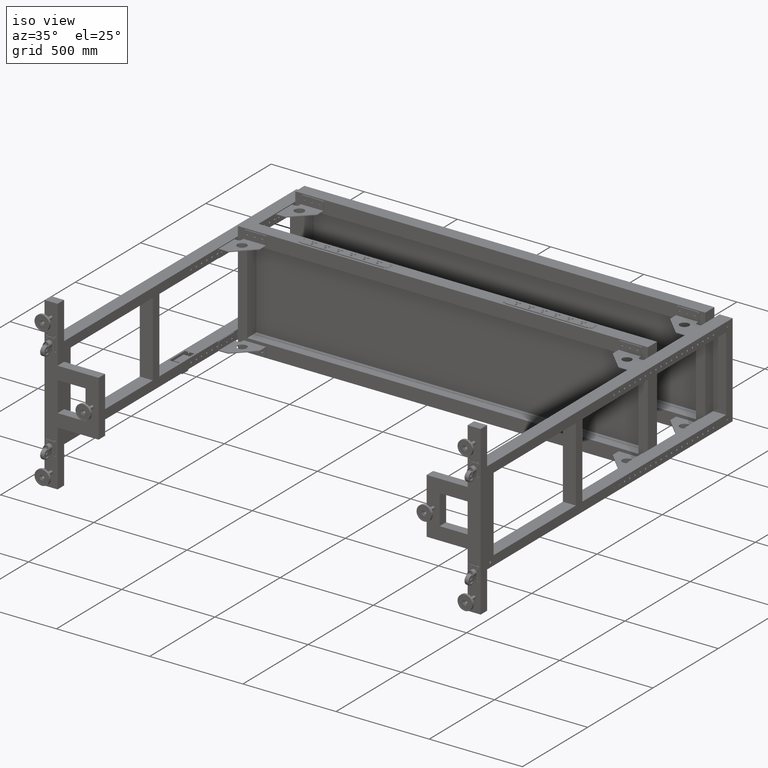
[diagram: clean part render]
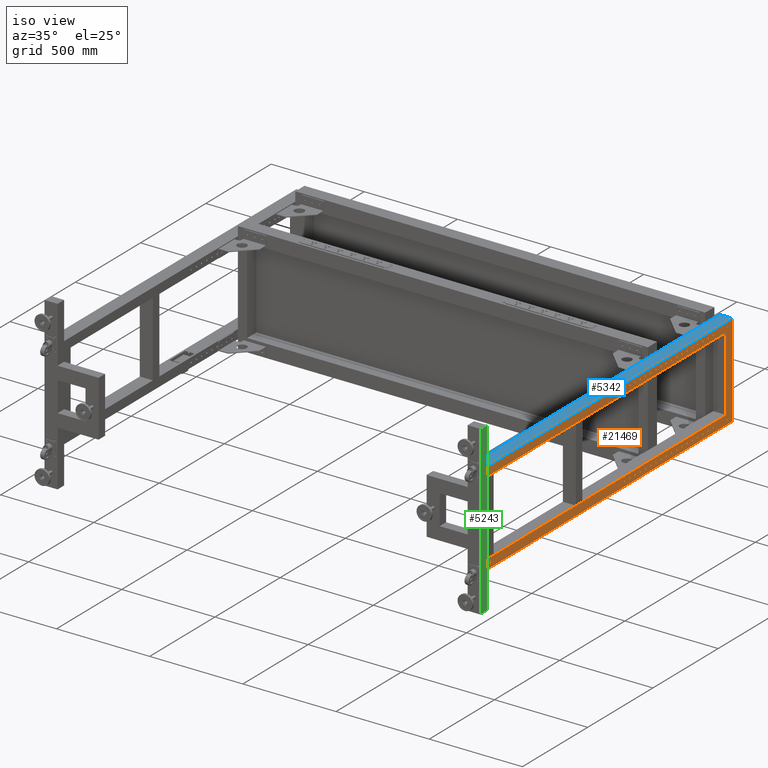
[diagram: same view with three faces highlighted in distinct colors, each labeled with its STEP entity id]
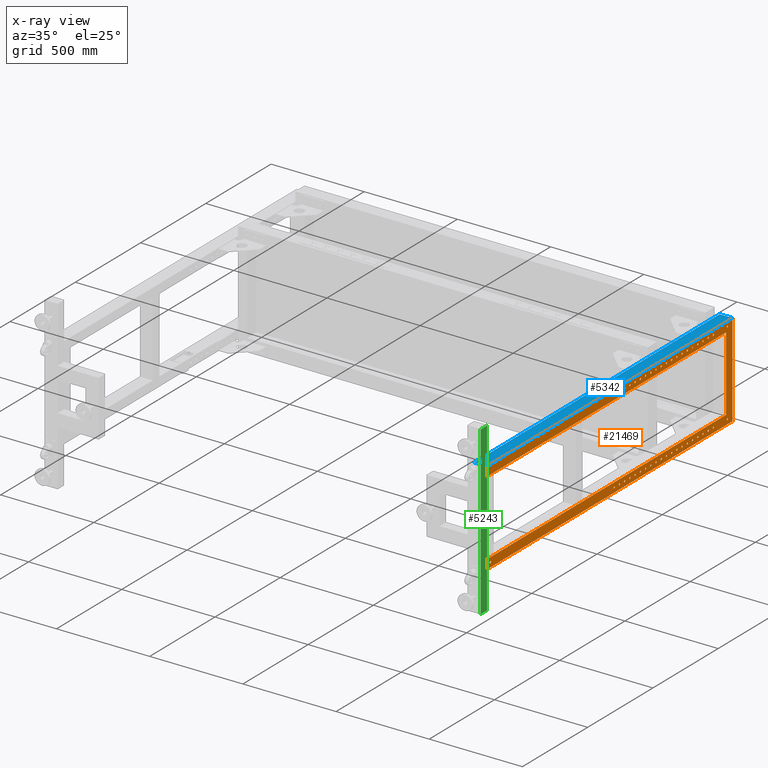
[diagram: x-ray of the same camera — body ghosted, the three highlighted faces saturated]
A machine part, iso view with three faces highlighted in distinct colors.
The next image is the same camera in x-ray (body ghosted, the three faces saturated) — at least one of them is partly hidden behind the body in this view.
Their STEP definitions:

[orange] entity #21469 — the highlighted planar face has unit normal (1, 0, 0).
#523 = AXIS2_PLACEMENT_3D ( 'NONE', #62871, #58203, #44053 ) ;
#701 = DIRECTION ( 'NONE',  ( 0.000000000000000000, 0.000000000000000000, -1.000000000000000000 ) ) ;
#743 = CIRCLE ( 'NONE', #4661, 4.500000000000059508 ) ;
#977 = CARTESIAN_POINT ( 'NONE',  ( 1001.827512562814832, 529.4410804020113801, -220.5000000000000000 ) ) ;
#1010 = ORIENTED_EDGE ( 'NONE', *, *, #30962, .F. ) ;
#1194 = AXIS2_PLACEMENT_3D ( 'NONE', #3020, #20611, #9144 ) ;
#1277 = VERTEX_POINT ( 'NONE', #53666 ) ;
#1316 = CIRCLE ( 'NONE', #30110, 4.500000000000059508 ) ;
#1376 = CARTESIAN_POINT ( 'NONE',  ( 1001.827512562815059, 169.4410804020112948, -225.0000000000000000 ) ) ;
#1878 = AXIS2_PLACEMENT_3D ( 'NONE', #11228, #55442, #29237 ) ;
#2033 = CIRCLE ( 'NONE', #73947, 4.500000000000003553 ) ;
#2070 = CARTESIAN_POINT ( 'NONE',  ( 1001.827512562815059, 244.9410804020114369, 224.9999999999955094 ) ) ;
#2071 = CIRCLE ( 'NONE', #59576, 4.500000000000003553 ) ;
#2206 = VERTEX_POINT ( 'NONE', #43520 ) ;
#2362 = VERTEX_POINT ( 'NONE', #34030 ) ;
#2525 = AXIS2_PLACEMENT_3D ( 'NONE', #16176, #46906, #78792 ) ;
#2619 = VERTEX_POINT ( 'NONE', #47539 ) ;
#2832 = VERTEX_POINT ( 'NONE', #76496 ) ;
#2903 = CARTESIAN_POINT ( 'NONE',  ( 1001.827512562815059, 409.4410804020112664, -225.0000000000000000 ) ) ;
#3020 = CARTESIAN_POINT ( 'NONE',  ( 1001.827512562814832, 529.4410804020113801, 224.9999999999974705 ) ) ;
#3025 = EDGE_LOOP ( 'NONE', ( #64218, #78535 ) ) ;
#3376 = EDGE_CURVE ( 'NONE', #2362, #52855, #50299, .T. ) ;
#3380 = CIRCLE ( 'NONE', #12550, 4.500000000000003553 ) ;
#3559 = CIRCLE ( 'NONE', #49303, 4.500000000000003553 ) ;
#3698 = CIRCLE ( 'NONE', #80796, 4.499999999999948486 ) ;
#3704 = CARTESIAN_POINT ( 'NONE',  ( 1001.827512562814832, 649.4410804020112664, -220.5000000000000000 ) ) ;
#3727 = CARTESIAN_POINT ( 'NONE',  ( 1001.827512562814832, 449.4410804020113233, -225.0000000000000000 ) ) ;
#3818 = AXIS2_PLACEMENT_3D ( 'NONE', #70883, #20526, #58601 ) ;
#3917 = CIRCLE ( 'NONE', #37840, 4.500000000000003553 ) ;
#3924 = DIRECTION ( 'NONE',  ( 1.000000000000000000, 2.653611717788262918E-16, 2.775557561562895295E-16 ) ) ;
#3962 = DIRECTION ( 'NONE',  ( 1.000000000000000000, 2.653611717788262918E-16, -0.000000000000000000 ) ) ;
#4012 = DIRECTION ( 'NONE',  ( 0.000000000000000000, 1.000000000000000000, 0.000000000000000000 ) ) ;
#4117 = VERTEX_POINT ( 'NONE', #14312 ) ;
#4212 = DIRECTION ( 'NONE',  ( 1.000000000000000000, 2.653611717788262918E-16, -0.000000000000000000 ) ) ;
#4404 = DIRECTION ( 'NONE',  ( 1.000000000000000000, 2.653611717788262918E-16, -0.000000000000000000 ) ) ;
#4661 = AXIS2_PLACEMENT_3D ( 'NONE', #53977, #72781, #54772 ) ;
#4720 = LINE ( 'NONE', #60413, #64782 ) ;
#4872 = EDGE_CURVE ( 'NONE', #10537, #71694, #66651, .T. ) ;
#4996 = VERTEX_POINT ( 'NONE', #9856 ) ;
#5320 = EDGE_CURVE ( 'NONE', #28069, #80969, #25518, .T. ) ;
#5474 = LINE ( 'NONE', #31224, #69679 ) ;
#5479 = EDGE_CURVE ( 'NONE', #53264, #28212, #54153, .T. ) ;
#5515 = FACE_BOUND ( 'NONE', #22838, .T. ) ;
#5777 = ORIENTED_EDGE ( 'NONE', *, *, #48064, .F. ) ;
#5856 = CARTESIAN_POINT ( 'NONE',  ( 1001.827512562815741, 1036.441080402011494, -250.0000000000000000 ) ) ;
#6051 = DIRECTION ( 'NONE',  ( 0.000000000000000000, 0.000000000000000000, -1.000000000000000000 ) ) ;
#6311 = FACE_BOUND ( 'NONE', #16919, .T. ) ;
#6324 = ORIENTED_EDGE ( 'NONE', *, *, #70932, .F. ) ;
#6347 = DIRECTION ( 'NONE',  ( 0.000000000000000000, 1.000000000000000000, 0.000000000000000000 ) ) ;
#6429 = CIRCLE ( 'NONE', #61375, 4.500000000000003553 ) ;
#6468 = DIRECTION ( 'NONE',  ( 1.000000000000000000, 2.653611717788262918E-16, 2.775557561562890365E-16 ) ) ;
#6479 = CIRCLE ( 'NONE', #23481, 4.500000000000003553 ) ;
#6646 = AXIS2_PLACEMENT_3D ( 'NONE', #32316, #52782, #19655 ) ;
#6667 = CIRCLE ( 'NONE', #53724, 4.499999999999948486 ) ;
#6712 = FACE_OUTER_BOUND ( 'NONE', #32771, .T. ) ;
#6727 = EDGE_LOOP ( 'NONE', ( #61870, #24569 ) ) ;
#6860 = EDGE_LOOP ( 'NONE', ( #49653, #14964 ) ) ;
#6866 = CARTESIAN_POINT ( 'NONE',  ( 1001.827512562815059, 369.4410804020113233, -225.0000000000000000 ) ) ;
#6887 = EDGE_CURVE ( 'NONE', #79333, #59915, #2071, .T. ) ;
#6909 = EDGE_CURVE ( 'NONE', #70505, #56009, #56942, .T. ) ;
#6931 = CARTESIAN_POINT ( 'NONE',  ( 1001.827512562814832, 769.4410804020113801, 224.9999999999991473 ) ) ;
#7034 = CARTESIAN_POINT ( 'NONE',  ( 1001.827512562815059, 169.4410804020114085, 224.9999999999949409 ) ) ;
#7075 = DIRECTION ( 'NONE',  ( 1.265361171778826222E-15, -1.000000000000000000, -0.000000000000000000 ) ) ;
#7152 = ORIENTED_EDGE ( 'NONE', *, *, #66881, .F. ) ;
#7271 = CARTESIAN_POINT ( 'NONE',  ( 1001.827512562814832, 849.4410804020113801, -220.5000000000000000 ) ) ;
#7499 = DIRECTION ( 'NONE',  ( -1.000000000000000000, 2.897503405337517812E-16, -0.000000000000000000 ) ) ;
#7610 = CARTESIAN_POINT ( 'NONE',  ( 1001.827512562815059, 329.4410804020113233, -225.0000000000000000 ) ) ;
#7700 = CIRCLE ( 'NONE', #3818, 4.500000000000003553 ) ;
#7795 = EDGE_CURVE ( 'NONE', #21914, #62999, #66907, .T. ) ;
#7922 = DIRECTION ( 'NONE',  ( 0.000000000000000000, 1.000000000000000000, 0.000000000000000000 ) ) ;
#8100 = CIRCLE ( 'NONE', #32923, 4.500000000000003553 ) ;
#8107 = DIRECTION ( 'NONE',  ( 0.000000000000000000, 1.000000000000000000, 0.000000000000000000 ) ) ;
#8203 = ORIENTED_EDGE ( 'NONE', *, *, #36908, .F. ) ;
#8241 = ORIENTED_EDGE ( 'NONE', *, *, #47165, .F. ) ;
#8665 = VERTEX_POINT ( 'NONE', #28064 ) ;
#8719 = DIRECTION ( 'NONE',  ( 1.224646799147351975E-16, 3.249737096369302330E-32, -1.000000000000000000 ) ) ;
#8910 = CARTESIAN_POINT ( 'NONE',  ( 1001.827512562815059, 249.4410804020113801, 224.9999999999955094 ) ) ;
#9013 = EDGE_CURVE ( 'NONE', #34868, #71244, #54577, .T. ) ;
#9080 = CARTESIAN_POINT ( 'NONE',  ( 1001.827512562814832, 849.4410804020114938, 224.9999999999996874 ) ) ;
#9144 = DIRECTION ( 'NONE',  ( 0.000000000000000000, 1.000000000000000000, 0.000000000000000000 ) ) ;
#9626 = CARTESIAN_POINT ( 'NONE',  ( 1001.827512562815059, 329.4410804020114369, 224.9999999999960778 ) ) ;
#9663 = ORIENTED_EDGE ( 'NONE', *, *, #29219, .F. ) ;
#9778 = EDGE_LOOP ( 'NONE', ( #5777, #31491 ) ) ;
#9818 = AXIS2_PLACEMENT_3D ( 'NONE', #43384, #62188, #75265 ) ;
#9856 = CARTESIAN_POINT ( 'NONE',  ( 1001.827512562814832, 569.4410804020113801, -220.5000000000000000 ) ) ;
#10065 = EDGE_CURVE ( 'NONE', #69108, #26558, #11567, .T. ) ;
#10164 = ORIENTED_EDGE ( 'NONE', *, *, #76046, .F. ) ;
#10298 = CIRCLE ( 'NONE', #74335, 4.500000000000003553 ) ;
#10404 = CIRCLE ( 'NONE', #43149, 4.500000000000003553 ) ;
#10421 = CIRCLE ( 'NONE', #57460, 4.500000000000003553 ) ;
#10440 = CARTESIAN_POINT ( 'NONE',  ( 1001.827512562815286, -819.5589195979885062, -225.0000000000000000 ) ) ;
#10537 = VERTEX_POINT ( 'NONE', #49660 ) ;
#10632 = VERTEX_POINT ( 'NONE', #13998 ) ;
#10736 = ORIENTED_EDGE ( 'NONE', *, *, #36292, .F. ) ;
#10785 = CARTESIAN_POINT ( 'NONE',  ( 1001.827512562815059, 369.4410804020113233, 224.9999999999963336 ) ) ;
#10848 = VERTEX_POINT ( 'NONE', #42224 ) ;
#11059 = DIRECTION ( 'NONE',  ( 0.000000000000000000, 0.000000000000000000, -1.000000000000000000 ) ) ;
#11228 = CARTESIAN_POINT ( 'NONE',  ( 1001.827512562815059, 409.4410804020113801, 224.9999999999966178 ) ) ;
#11310 = CARTESIAN_POINT ( 'NONE',  ( 1001.827512562815059, 369.4410804020113233, -229.5000000000000000 ) ) ;
#11361 = CARTESIAN_POINT ( 'NONE',  ( 1001.827512562815286, -844.5589195979886199, 249.9999999999999716 ) ) ;
#11457 = DIRECTION ( 'NONE',  ( 0.000000000000000000, 0.000000000000000000, -1.000000000000000000 ) ) ;
#11567 = CIRCLE ( 'NONE', #32465, 4.499999999999948486 ) ;
#11575 = CIRCLE ( 'NONE', #58613, 4.499999999999948486 ) ;
#11637 = AXIS2_PLACEMENT_3D ( 'NONE', #15191, #57785, #39378 ) ;
#11651 = FACE_BOUND ( 'NONE', #73584, .T. ) ;
#12137 = CARTESIAN_POINT ( 'NONE',  ( 1001.827512562814832, 769.4410804020113801, 224.9999999999991473 ) ) ;
#12138 = CARTESIAN_POINT ( 'NONE',  ( 1001.827512562814832, 809.4410804020114938, 224.9999999999994316 ) ) ;
#12181 = DIRECTION ( 'NONE',  ( 0.000000000000000000, 1.000000000000000000, 0.000000000000000000 ) ) ;
#12223 = DIRECTION ( 'NONE',  ( 1.000000000000000000, 2.653611717788262918E-16, 2.775557561562890365E-16 ) ) ;
#12314 = ORIENTED_EDGE ( 'NONE', *, *, #4872, .F. ) ;
#12403 = DIRECTION ( 'NONE',  ( 0.000000000000000000, 1.000000000000000000, 0.000000000000000000 ) ) ;
#12452 = FACE_BOUND ( 'NONE', #55605, .T. ) ;
#12550 = AXIS2_PLACEMENT_3D ( 'NONE', #30317, #55309, #63060 ) ;
#12556 = AXIS2_PLACEMENT_3D ( 'NONE', #17853, #54303, #80465 ) ;
#12579 = CARTESIAN_POINT ( 'NONE',  ( 1001.827512562814832, 453.9410804020113801, 224.9999999999969020 ) ) ;
#12663 = CARTESIAN_POINT ( 'NONE',  ( 1001.827512562814832, 849.4410804020113801, -229.5000000000000000 ) ) ;
#12696 = ORIENTED_EDGE ( 'NONE', *, *, #28839, .F. ) ;
#12871 = FACE_BOUND ( 'NONE', #56274, .T. ) ;
#12944 = VERTEX_POINT ( 'NONE', #39114 ) ;
#12985 = EDGE_LOOP ( 'NONE', ( #24682, #6324 ) ) ;
#13111 = VERTEX_POINT ( 'NONE', #41550 ) ;
#13113 = EDGE_LOOP ( 'NONE', ( #52896, #14891 ) ) ;
#13200 = ORIENTED_EDGE ( 'NONE', *, *, #35371, .F. ) ;
#13264 = FACE_BOUND ( 'NONE', #61882, .T. ) ;
#13560 = DIRECTION ( 'NONE',  ( 1.000000000000000000, 2.653611717788262918E-16, 2.775557561562890365E-16 ) ) ;
#13627 = CARTESIAN_POINT ( 'NONE',  ( 1001.827512562814832, 986.4410804020139949, 199.9999999999999716 ) ) ;
#13656 = FACE_BOUND ( 'NONE', #74212, .T. ) ;
#13678 = AXIS2_PLACEMENT_3D ( 'NONE', #70045, #13560, #52026 ) ;
#13736 = EDGE_CURVE ( 'NONE', #52855, #2362, #77915, .T. ) ;
#13852 = ORIENTED_EDGE ( 'NONE', *, *, #43607, .F. ) ;
#13934 = CARTESIAN_POINT ( 'NONE',  ( 1001.827512562814832, 449.4410804020113233, -225.0000000000000000 ) ) ;
#13963 = DIRECTION ( 'NONE',  ( 1.000000000000000000, 2.653611717788262918E-16, -0.000000000000000000 ) ) ;
#13998 = CARTESIAN_POINT ( 'NONE',  ( 1001.827512562814832, 693.9410804020113801, 224.9999999999985789 ) ) ;
#14058 = CIRCLE ( 'NONE', #74173, 4.500000000000003553 ) ;
#14155 = EDGE_LOOP ( 'NONE', ( #30523, #80519 ) ) ;
#14158 = CARTESIAN_POINT ( 'NONE',  ( 1001.827512562815286, -819.5589195979885062, -230.5000000000000000 ) ) ;
#14208 = AXIS2_PLACEMENT_3D ( 'NONE', #16480, #4212, #36522 ) ;
#14268 = VERTEX_POINT ( 'NONE', #22297 ) ;
#14311 = CIRCLE ( 'NONE', #2525, 4.499999999999893419 ) ;
#14312 = CARTESIAN_POINT ( 'NONE',  ( 1001.827512562814832, 493.9410804020113801, 224.9999999999971863 ) ) ;
#14468 = PLANE ( 'NONE',  #63691 ) ;
#14781 = DIRECTION ( 'NONE',  ( 0.000000000000000000, 1.000000000000000000, 0.000000000000000000 ) ) ;
#14891 = ORIENTED_EDGE ( 'NONE', *, *, #30131, .T. ) ;
#14925 = ORIENTED_EDGE ( 'NONE', *, *, #45790, .F. ) ;
#14944 = AXIS2_PLACEMENT_3D ( 'NONE', #7610, #20688, #39142 ) ;
#14964 = ORIENTED_EDGE ( 'NONE', *, *, #79702, .F. ) ;
#15017 = CIRCLE ( 'NONE', #60777, 4.499999999999948486 ) ;
#15061 = ORIENTED_EDGE ( 'NONE', *, *, #17676, .F. ) ;
#15116 = AXIS2_PLACEMENT_3D ( 'NONE', #76068, #26528, #8107 ) ;
#15191 = CARTESIAN_POINT ( 'NONE',  ( 1001.827512562814832, 649.4410804020112664, -225.0000000000000000 ) ) ;
#15290 = CIRCLE ( 'NONE', #55798, 4.500000000000003553 ) ;
#15506 = ORIENTED_EDGE ( 'NONE', *, *, #53291, .T. ) ;
#15583 = VERTEX_POINT ( 'NONE', #71135 ) ;
#15818 = DIRECTION ( 'NONE',  ( 1.000000000000000000, 2.653611717788262918E-16, -0.000000000000000000 ) ) ;
#16147 = DIRECTION ( 'NONE',  ( 0.000000000000000000, 0.000000000000000000, -1.000000000000000000 ) ) ;
#16176 = CARTESIAN_POINT ( 'NONE',  ( 1001.827512562815059, 249.4410804020113801, -225.0000000000000000 ) ) ;
#16203 = VERTEX_POINT ( 'NONE', #5856 ) ;
#16202 = EDGE_CURVE ( 'NONE', #18924, #69768, #5474, .T. ) ;
#16444 = CARTESIAN_POINT ( 'NONE',  ( 1001.827512562815059, 409.4410804020113801, 224.9999999999966178 ) ) ;
#16462 = CARTESIAN_POINT ( 'NONE',  ( 1001.827512562815059, 409.4410804020112664, -229.5000000000000000 ) ) ;
#16480 = CARTESIAN_POINT ( 'NONE',  ( 1001.827512562815059, 329.4410804020114369, 224.9999999999960778 ) ) ;
#16523 = ORIENTED_EDGE ( 'NONE', *, *, #48132, .F. ) ;
#16834 = ORIENTED_EDGE ( 'NONE', *, *, #18708, .F. ) ;
#16919 = EDGE_LOOP ( 'NONE', ( #8241, #59389 ) ) ;
#17128 = ORIENTED_EDGE ( 'NONE', *, *, #47437, .F. ) ;
#17292 = CARTESIAN_POINT ( 'NONE',  ( 1001.827512562814832, 533.9410804020113801, 224.9999999999974705 ) ) ;
#17324 = ORIENTED_EDGE ( 'NONE', *, *, #29244, .F. ) ;
#17595 = CIRCLE ( 'NONE', #1878, 4.500000000000059508 ) ;
#17676 = EDGE_CURVE ( 'NONE', #62999, #21914, #55070, .T. ) ;
#17749 = DIRECTION ( 'NONE',  ( 1.000000000000000000, 2.653611717788262918E-16, 2.775557561562890365E-16 ) ) ;
#17784 = FACE_BOUND ( 'NONE', #6727, .T. ) ;
#17853 = CARTESIAN_POINT ( 'NONE',  ( 1001.827512562814832, 529.4410804020113801, 224.9999999999974705 ) ) ;
#18113 = CARTESIAN_POINT ( 'NONE',  ( 1001.827512562814832, 844.9410804020113801, 224.9999999999996874 ) ) ;
#18193 = CARTESIAN_POINT ( 'NONE',  ( 1001.827512562815741, 1036.441080402011494, 250.0000000000000000 ) ) ;
#18324 = CARTESIAN_POINT ( 'NONE',  ( 1001.827512562815059, 209.4410804020114654, 224.9999999999952252 ) ) ;
#18346 = EDGE_CURVE ( 'NONE', #20200, #45830, #48332, .T. ) ;
#18366 = CARTESIAN_POINT ( 'NONE',  ( 1001.827512562815059, 204.9410804020113801, 224.9999999999952252 ) ) ;
#18382 = CARTESIAN_POINT ( 'NONE',  ( 1001.827512562814832, 769.4410804020113801, -225.0000000000000000 ) ) ;
#18419 = EDGE_CURVE ( 'NONE', #4117, #42375, #6479, .T. ) ;
#18556 = CARTESIAN_POINT ( 'NONE',  ( 1001.827512562814832, 449.4410804020114369, 224.9999999999969020 ) ) ;
#18602 = FACE_BOUND ( 'NONE', #55486, .T. ) ;
#18671 = VECTOR ( 'NONE', #41537, 1000.000000000000000 ) ;
#18708 = EDGE_CURVE ( 'NONE', #54214, #1277, #73201, .T. ) ;
#18770 = DIRECTION ( 'NONE',  ( 0.000000000000000000, 0.000000000000000000, -1.000000000000000000 ) ) ;
#18924 = VERTEX_POINT ( 'NONE', #33778 ) ;
#19026 = CIRCLE ( 'NONE', #24218, 4.500000000000003553 ) ;
#19311 = CIRCLE ( 'NONE', #25798, 4.499999999999948486 ) ;
#19433 = VERTEX_POINT ( 'NONE', #3704 ) ;
#19538 = CARTESIAN_POINT ( 'NONE',  ( 1001.827512562814832, 684.9410804020113801, 224.9999999999985789 ) ) ;
#19572 = AXIS2_PLACEMENT_3D ( 'NONE', #45365, #76857, #51491 ) ;
#19655 = DIRECTION ( 'NONE',  ( 0.000000000000000000, 1.000000000000000000, 0.000000000000000000 ) ) ;
#19874 = ORIENTED_EDGE ( 'NONE', *, *, #54521, .F. ) ;
#20200 = VERTEX_POINT ( 'NONE', #57346 ) ;
#20216 = ORIENTED_EDGE ( 'NONE', *, *, #66141, .F. ) ;
#20293 = CARTESIAN_POINT ( 'NONE',  ( 1001.827512562814832, 569.4410804020113801, -225.0000000000000000 ) ) ;
#20308 = CIRCLE ( 'NONE', #46447, 4.500000000000003553 ) ;
#20493 = CIRCLE ( 'NONE', #50555, 4.500000000000087041 ) ;
#20511 = VERTEX_POINT ( 'NONE', #47502 ) ;
#20526 = DIRECTION ( 'NONE',  ( 1.000000000000000000, 2.653611717788262918E-16, 2.775557561562890365E-16 ) ) ;
#20611 = DIRECTION ( 'NONE',  ( 1.000000000000000000, 2.653611717788262918E-16, -0.000000000000000000 ) ) ;
#20688 = DIRECTION ( 'NONE',  ( 1.000000000000000000, 2.653611717788262918E-16, 2.775557561562890365E-16 ) ) ;
#20736 = CIRCLE ( 'NONE', #40361, 4.500000000000003553 ) ;
#20791 = DIRECTION ( 'NONE',  ( 0.000000000000000000, 0.000000000000000000, -1.000000000000000000 ) ) ;
#20829 = CARTESIAN_POINT ( 'NONE',  ( 1001.827512562814832, 809.4410804020114938, 224.9999999999994316 ) ) ;
#21065 = ORIENTED_EDGE ( 'NONE', *, *, #40829, .F. ) ;
#21102 = CARTESIAN_POINT ( 'NONE',  ( 1001.827512562815059, 289.4410804020113801, 224.9999999999957936 ) ) ;
#21241 = EDGE_LOOP ( 'NONE', ( #12314, #63426 ) ) ;
#21257 = DIRECTION ( 'NONE',  ( 1.000000000000000000, 2.653611717788262918E-16, -0.000000000000000000 ) ) ;
#21469 = ADVANCED_FACE ( 'NONE', ( #6712, #74259, #6311, #37422, #44396, #56658, #68544, #79999, #25145, #55049, #61601, #50125, #12871, #31268, #68146, #25535, #50522, #69359, #80800, #56255, #24736, #5515, #49715, #43583, #13264, #63202, #74667, #18602, #12452, #62403, #30060, #30463, #23932, #48906, #17784, #42781, #11651, #55445, #80389, #44788, #76270, #13656, #45588, #50929 ), #14468, .T. ) ;
#21481 = AXIS2_PLACEMENT_3D ( 'NONE', #13934, #75749, #25814 ) ;
#21516 = DIRECTION ( 'NONE',  ( 0.000000000000000000, 0.000000000000000000, -1.000000000000000000 ) ) ;
#21525 = CARTESIAN_POINT ( 'NONE',  ( 1001.827512562814832, 689.4410804020113801, -220.5000000000000000 ) ) ;
#21781 = ORIENTED_EDGE ( 'NONE', *, *, #70336, .T. ) ;
#21914 = VERTEX_POINT ( 'NONE', #53558 ) ;
#21942 = ORIENTED_EDGE ( 'NONE', *, *, #35891, .F. ) ;
#22025 = AXIS2_PLACEMENT_3D ( 'NONE', #10785, #35747, #79937 ) ;
#22084 = EDGE_CURVE ( 'NONE', #39086, #31679, #48155, .T. ) ;
#22125 = CIRCLE ( 'NONE', #1194, 4.499999999999948486 ) ;
#22158 = DIRECTION ( 'NONE',  ( 1.000000000000000000, 2.653611717788262918E-16, -0.000000000000000000 ) ) ;
#22162 = ORIENTED_EDGE ( 'NONE', *, *, #55241, .F. ) ;
#22296 = DIRECTION ( 'NONE',  ( 1.000000000000000000, 2.653611717788262918E-16, 2.775557561562890365E-16 ) ) ;
#22297 = CARTESIAN_POINT ( 'NONE',  ( 1001.827512562815969, 1000.941080402011607, 224.9999999999999716 ) ) ;
#22433 = DIRECTION ( 'NONE',  ( 1.000000000000000000, 2.653611717788262918E-16, 2.775557561562890365E-16 ) ) ;
#22508 = VECTOR ( 'NONE', #48146, 1000.000000000000000 ) ;
#22801 = EDGE_CURVE ( 'NONE', #50536, #55055, #69146, .T. ) ;
#22838 = EDGE_LOOP ( 'NONE', ( #21781, #68644 ) ) ;
#22983 = ORIENTED_EDGE ( 'NONE', *, *, #58728, .F. ) ;
#23077 = LINE ( 'NONE', #78343, #18671 ) ;
#23169 = CARTESIAN_POINT ( 'NONE',  ( 1001.827512562814832, 889.4410804020113801, -229.5000000000000000 ) ) ;
#23289 = CARTESIAN_POINT ( 'NONE',  ( 1001.827512562814832, 449.4410804020113233, -229.5000000000000000 ) ) ;
#23348 = DIRECTION ( 'NONE',  ( 1.000000000000000000, 2.653611717788262918E-16, 2.775557561562890365E-16 ) ) ;
#23378 = VERTEX_POINT ( 'NONE', #66216 ) ;
#23404 = DIRECTION ( 'NONE',  ( 0.000000000000000000, 1.000000000000000000, 0.000000000000000000 ) ) ;
#23481 = AXIS2_PLACEMENT_3D ( 'NONE', #38410, #71130, #70729 ) ;
#23767 = ORIENTED_EDGE ( 'NONE', *, *, #74607, .F. ) ;
#23837 = DIRECTION ( 'NONE',  ( 1.000000000000000000, 2.653611717788262918E-16, 2.775557561562890365E-16 ) ) ;
#23932 = FACE_BOUND ( 'NONE', #6860, .T. ) ;
#23950 = VERTEX_POINT ( 'NONE', #65983 ) ;
#23958 = DIRECTION ( 'NONE',  ( 1.000000000000000000, 2.653611717788262918E-16, 2.775557561562890365E-16 ) ) ;
#23997 = DIRECTION ( 'NONE',  ( 0.000000000000000000, 1.000000000000000000, 0.000000000000000000 ) ) ;
#24218 = AXIS2_PLACEMENT_3D ( 'NONE', #32177, #33394, #21516 ) ;
#24318 = CARTESIAN_POINT ( 'NONE',  ( 1001.827512562814832, 729.4410804020113801, -229.5000000000000000 ) ) ;
#24363 = DIRECTION ( 'NONE',  ( 0.000000000000000000, 1.000000000000000000, 0.000000000000000000 ) ) ;
#24509 = DIRECTION ( 'NONE',  ( 0.000000000000000000, 0.000000000000000000, -1.000000000000000000 ) ) ;
#24569 = ORIENTED_EDGE ( 'NONE', *, *, #41103, .F. ) ;
#24682 = ORIENTED_EDGE ( 'NONE', *, *, #10065, .F. ) ;
#24736 = FACE_BOUND ( 'NONE', #14155, .T. ) ;
#24766 = DIRECTION ( 'NONE',  ( 0.000000000000000000, 0.000000000000000000, -1.000000000000000000 ) ) ;
#24831 = EDGE_LOOP ( 'NONE', ( #13852, #54676 ) ) ;
#25067 = ORIENTED_EDGE ( 'NONE', *, *, #65472, .F. ) ;
#25113 = ORIENTED_EDGE ( 'NONE', *, *, #39066, .F. ) ;
#25145 = FACE_BOUND ( 'NONE', #3025, .T. ) ;
#25174 = CARTESIAN_POINT ( 'NONE',  ( 1001.827512562814832, 889.4410804020113801, -225.0000000000000000 ) ) ;
#25518 = CIRCLE ( 'NONE', #41261, 4.500000000000059508 ) ;
#25535 = FACE_BOUND ( 'NONE', #69510, .T. ) ;
#25798 = AXIS2_PLACEMENT_3D ( 'NONE', #47404, #4404, #4012 ) ;
#25807 = CARTESIAN_POINT ( 'NONE',  ( 1001.827512562814832, 729.4410804020113801, 224.9999999999988631 ) ) ;
#25814 = DIRECTION ( 'NONE',  ( 0.000000000000000000, 0.000000000000000000, -1.000000000000000000 ) ) ;
#25911 = VERTEX_POINT ( 'NONE', #29329 ) ;
#25935 = EDGE_CURVE ( 'NONE', #43392, #67513, #71402, .T. ) ;
#25957 = CARTESIAN_POINT ( 'NONE',  ( 1001.827512562814832, 609.4410804020113801, -220.5000000000000000 ) ) ;
#25965 = ORIENTED_EDGE ( 'NONE', *, *, #22801, .F. ) ;
#25968 = ORIENTED_EDGE ( 'NONE', *, *, #26854, .F. ) ;
#26136 = CARTESIAN_POINT ( 'NONE',  ( 1001.827512562815059, 369.4410804020113233, -225.0000000000000000 ) ) ;
#26195 = CARTESIAN_POINT ( 'NONE',  ( 1001.827512562815059, 169.4410804020112948, -220.5000000000000000 ) ) ;
#26259 = DIRECTION ( 'NONE',  ( 1.000000000000000000, 2.653611717788262918E-16, -0.000000000000000000 ) ) ;
#26336 = VERTEX_POINT ( 'NONE', #59981 ) ;
#26528 = DIRECTION ( 'NONE',  ( 1.000000000000000000, 2.653611717788262918E-16, -0.000000000000000000 ) ) ;
#26558 = VERTEX_POINT ( 'NONE', #31259 ) ;
#26592 = VERTEX_POINT ( 'NONE', #977 ) ;
#26703 = VERTEX_POINT ( 'NONE', #54846 ) ;
#26854 = EDGE_CURVE ( 'NONE', #28212, #53264, #34751, .T. ) ;
#27211 = CARTESIAN_POINT ( 'NONE',  ( 1001.827512562815286, -819.5589195979885062, -219.5000000000000000 ) ) ;
#27270 = CARTESIAN_POINT ( 'NONE',  ( 1001.827512562814832, 524.9410804020114938, 224.9999999999974705 ) ) ;
#27451 = ORIENTED_EDGE ( 'NONE', *, *, #5479, .F. ) ;
#27522 = ORIENTED_EDGE ( 'NONE', *, *, #77038, .F. ) ;
#27652 = CARTESIAN_POINT ( 'NONE',  ( 1001.827512562814832, 809.4410804020113801, -225.0000000000000000 ) ) ;
#27711 = CARTESIAN_POINT ( 'NONE',  ( 1001.827512562815059, 284.9410804020114369, 224.9999999999957936 ) ) ;
#27721 = EDGE_CURVE ( 'NONE', #47754, #2619, #20493, .T. ) ;
#27852 = EDGE_LOOP ( 'NONE', ( #33187, #76234 ) ) ;
#27875 = AXIS2_PLACEMENT_3D ( 'NONE', #60833, #67383, #55109 ) ;
#27893 = CARTESIAN_POINT ( 'NONE',  ( 1001.827512562814832, 689.4410804020113801, -229.5000000000000000 ) ) ;
#28029 = CIRCLE ( 'NONE', #21481, 4.500000000000003553 ) ;
#28041 = CARTESIAN_POINT ( 'NONE',  ( 1001.827512562814832, 809.4410804020113801, -220.5000000000000000 ) ) ;
#28050 = AXIS2_PLACEMENT_3D ( 'NONE', #10440, #29640, #48510 ) ;
#28064 = CARTESIAN_POINT ( 'NONE',  ( 1001.827512562815059, 289.4410804020112664, -220.5000000000000000 ) ) ;
#28069 = VERTEX_POINT ( 'NONE', #27711 ) ;
#28111 = AXIS2_PLACEMENT_3D ( 'NONE', #2903, #46697, #58139 ) ;
#28157 = CARTESIAN_POINT ( 'NONE',  ( 1001.827512562814832, 609.4410804020114938, 224.9999999999980389 ) ) ;
#28177 = DIRECTION ( 'NONE',  ( -2.653611717788262918E-16, 1.000000000000000000, 0.000000000000000000 ) ) ;
#28212 = VERTEX_POINT ( 'NONE', #45751 ) ;
#28247 = EDGE_CURVE ( 'NONE', #42413, #70727, #49203, .T. ) ;
#28341 = DIRECTION ( 'NONE',  ( 1.000000000000000000, 2.653611717788262918E-16, -0.000000000000000000 ) ) ;
#28359 = ORIENTED_EDGE ( 'NONE', *, *, #60237, .F. ) ;
#28497 = DIRECTION ( 'NONE',  ( 0.000000000000000000, -1.000000000000000000, 0.000000000000000000 ) ) ;
#28686 = AXIS2_PLACEMENT_3D ( 'NONE', #9626, #72663, #40369 ) ;
#28839 = EDGE_CURVE ( 'NONE', #47352, #62747, #32023, .T. ) ;
#28918 = CARTESIAN_POINT ( 'NONE',  ( 1001.827512562814832, 729.4410804020113801, -220.5000000000000000 ) ) ;
#29219 = EDGE_CURVE ( 'NONE', #36568, #53476, #33577, .T. ) ;
#29237 = DIRECTION ( 'NONE',  ( 0.000000000000000000, 1.000000000000000000, 0.000000000000000000 ) ) ;
#29244 = EDGE_CURVE ( 'NONE', #78425, #25911, #15290, .T. ) ;
#29329 = CARTESIAN_POINT ( 'NONE',  ( 1001.827512562815059, 129.4410804020113801, -220.5000000000000000 ) ) ;
#29567 = CARTESIAN_POINT ( 'NONE',  ( 1001.827512562814832, 689.4410804020113801, -225.0000000000000000 ) ) ;
#29640 = DIRECTION ( 'NONE',  ( -1.000000000000000000, -2.653611717788262918E-16, -1.224646799147353947E-16 ) ) ;
#29669 = ORIENTED_EDGE ( 'NONE', *, *, #18346, .F. ) ;
#29736 = DIRECTION ( 'NONE',  ( 0.000000000000000000, 1.000000000000000000, 0.000000000000000000 ) ) ;
#29855 = ORIENTED_EDGE ( 'NONE', *, *, #40752, .F. ) ;
#29883 = ORIENTED_EDGE ( 'NONE', *, *, #6909, .F. ) ;
#29905 = EDGE_LOOP ( 'NONE', ( #29883, #53913 ) ) ;
#30040 = CIRCLE ( 'NONE', #73230, 4.500000000000059508 ) ;
#30059 = DIRECTION ( 'NONE',  ( 1.000000000000000000, 2.653611717788262918E-16, 2.775557561562890365E-16 ) ) ;
#30060 = FACE_BOUND ( 'NONE', #72949, .T. ) ;
#30094 = CARTESIAN_POINT ( 'NONE',  ( 1001.827512562815059, 124.9410804020114512, 224.9999999999946851 ) ) ;
#30110 = AXIS2_PLACEMENT_3D ( 'NONE', #16444, #66396, #77839 ) ;
#30131 = EDGE_CURVE ( 'NONE', #2832, #26336, #42898, .T. ) ;
#30182 = CIRCLE ( 'NONE', #49848, 4.500000000000087041 ) ;
#30317 = CARTESIAN_POINT ( 'NONE',  ( 1001.827512562815059, 209.4410804020113517, -225.0000000000000000 ) ) ;
#30463 = FACE_BOUND ( 'NONE', #58407, .T. ) ;
#30523 = ORIENTED_EDGE ( 'NONE', *, *, #37199, .F. ) ;
#30935 = AXIS2_PLACEMENT_3D ( 'NONE', #79670, #36297, #55127 ) ;
#30953 = DIRECTION ( 'NONE',  ( 1.000000000000000000, 2.653611717788262918E-16, -0.000000000000000000 ) ) ;
#30962 = EDGE_CURVE ( 'NONE', #53476, #36568, #33217, .T. ) ;
#31058 = VECTOR ( 'NONE', #71805, 1000.000000000000000 ) ;
#31163 = DIRECTION ( 'NONE',  ( 1.000000000000000000, 2.653611717788262918E-16, 2.775557561562890365E-16 ) ) ;
#31224 = CARTESIAN_POINT ( 'NONE',  ( 1001.827512562815286, -844.5589195979887336, -250.0000000000000000 ) ) ;
#31246 = EDGE_CURVE ( 'NONE', #8665, #26703, #55563, .T. ) ;
#31252 = CARTESIAN_POINT ( 'NONE',  ( 1001.827512562815969, 996.4410804020114938, -225.0000000000000000 ) ) ;
#31254 = AXIS2_PLACEMENT_3D ( 'NONE', #55941, #80885, #29736 ) ;
#31259 = CARTESIAN_POINT ( 'NONE',  ( 1001.827512562814832, 644.9410804020113801, 224.9999999999983231 ) ) ;
#31268 = FACE_BOUND ( 'NONE', #56851, .T. ) ;
#31353 = DIRECTION ( 'NONE',  ( 1.000000000000000000, 2.653611717788262918E-16, -0.000000000000000000 ) ) ;
#31491 = ORIENTED_EDGE ( 'NONE', *, *, #6887, .F. ) ;
#31494 = EDGE_LOOP ( 'NONE', ( #32443, #15506 ) ) ;
#31652 = DIRECTION ( 'NONE',  ( 0.000000000000000000, -1.000000000000000000, 0.000000000000000000 ) ) ;
#31679 = VERTEX_POINT ( 'NONE', #58167 ) ;
#32023 = LINE ( 'NONE', #13627, #76634 ) ;
#32177 = CARTESIAN_POINT ( 'NONE',  ( 1001.827512562815059, 409.4410804020112664, -225.0000000000000000 ) ) ;
#32316 = CARTESIAN_POINT ( 'NONE',  ( 1001.827512562814832, 889.4410804020113801, 224.9999999999999716 ) ) ;
#32443 = ORIENTED_EDGE ( 'NONE', *, *, #48523, .T. ) ;
#32465 = AXIS2_PLACEMENT_3D ( 'NONE', #78912, #80421, #24363 ) ;
#32510 = CARTESIAN_POINT ( 'NONE',  ( 1001.827512562815059, 373.9410804020113801, 224.9999999999963336 ) ) ;
#32562 = EDGE_CURVE ( 'NONE', #18924, #16203, #73009, .T. ) ;
#32573 = ORIENTED_EDGE ( 'NONE', *, *, #16202, .F. ) ;
#32771 = EDGE_LOOP ( 'NONE', ( #42693, #32573, #50369, #62933, #73389, #46864, #12696, #67253 ) ) ;
#32866 = CARTESIAN_POINT ( 'NONE',  ( 1001.827512562815741, 986.4410804020112664, 199.9999999999999716 ) ) ;
#32923 = AXIS2_PLACEMENT_3D ( 'NONE', #59083, #47211, #77890 ) ;
#32995 = VERTEX_POINT ( 'NONE', #48762 ) ;
#33187 = ORIENTED_EDGE ( 'NONE', *, *, #80208, .F. ) ;
#33217 = CIRCLE ( 'NONE', #14944, 4.499999999999893419 ) ;
#33394 = DIRECTION ( 'NONE',  ( 1.000000000000000000, 2.653611717788262918E-16, 2.775557561562890365E-16 ) ) ;
#33577 = CIRCLE ( 'NONE', #38846, 4.499999999999893419 ) ;
#33778 = CARTESIAN_POINT ( 'NONE',  ( 1001.827512562815286, -844.5589195979887336, -250.0000000000000000 ) ) ;
#33834 = DIRECTION ( 'NONE',  ( 0.000000000000000000, 1.000000000000000000, 0.000000000000000000 ) ) ;
#33888 = CIRCLE ( 'NONE', #62653, 4.499999999999948486 ) ;
#34030 = CARTESIAN_POINT ( 'NONE',  ( 1001.827512562814832, 733.9410804020114938, 224.9999999999988631 ) ) ;
#34356 = VERTEX_POINT ( 'NONE', #26195 ) ;
#34561 = CARTESIAN_POINT ( 'NONE',  ( 1001.827512562814832, 609.4410804020113801, -229.5000000000000000 ) ) ;
#34619 = DIRECTION ( 'NONE',  ( -1.000000000000000000, 2.897503405337517812E-16, -0.000000000000000000 ) ) ;
#34751 = CIRCLE ( 'NONE', #15116, 4.500000000000059508 ) ;
#34845 = ORIENTED_EDGE ( 'NONE', *, *, #36925, .F. ) ;
#34868 = VERTEX_POINT ( 'NONE', #7271 ) ;
#35010 = ORIENTED_EDGE ( 'NONE', *, *, #76572, .F. ) ;
#35205 = ORIENTED_EDGE ( 'NONE', *, *, #76318, .F. ) ;
#35237 = AXIS2_PLACEMENT_3D ( 'NONE', #26136, #46588, #57649 ) ;
#35240 = AXIS2_PLACEMENT_3D ( 'NONE', #7034, #26259, #14781 ) ;
#35371 = EDGE_CURVE ( 'NONE', #70727, #42413, #22125, .T. ) ;
#35479 = CARTESIAN_POINT ( 'NONE',  ( 1001.827512562815059, 169.4410804020114085, 224.9999999999949409 ) ) ;
#35544 = CARTESIAN_POINT ( 'NONE',  ( 1001.827512562815286, -844.5589195979887336, -200.0000000000000000 ) ) ;
#35574 = CARTESIAN_POINT ( 'NONE',  ( 1001.827512562815059, 133.9410804020114369, 224.9999999999946851 ) ) ;
#35625 = VERTEX_POINT ( 'NONE', #18113 ) ;
#35660 = LINE ( 'NONE', #60635, #65393 ) ;
#35747 = DIRECTION ( 'NONE',  ( 1.000000000000000000, 2.653611717788262918E-16, -0.000000000000000000 ) ) ;
#35776 = CARTESIAN_POINT ( 'NONE',  ( 1001.827512562814832, 609.4410804020113801, -225.0000000000000000 ) ) ;
#35803 = CIRCLE ( 'NONE', #523, 4.500000000000003553 ) ;
#35891 = EDGE_CURVE ( 'NONE', #53246, #50140, #3917, .T. ) ;
#35977 = CARTESIAN_POINT ( 'NONE',  ( 1001.827512562815059, 129.4410804020113801, -225.0000000000000000 ) ) ;
#36106 = AXIS2_PLACEMENT_3D ( 'NONE', #12138, #30953, #73549 ) ;
#36292 = EDGE_CURVE ( 'NONE', #50652, #43303, #743, .T. ) ;
#36297 = DIRECTION ( 'NONE',  ( 1.000000000000000000, 2.653611717788262918E-16, -0.000000000000000000 ) ) ;
#36400 = DIRECTION ( 'NONE',  ( 0.000000000000000000, 0.000000000000000000, -1.000000000000000000 ) ) ;
#36479 = CIRCLE ( 'NONE', #31254, 4.499999999999948486 ) ;
#36512 = CARTESIAN_POINT ( 'NONE',  ( 1001.827512562815286, -844.5589195979887336, -200.0000000000000000 ) ) ;
#36522 = DIRECTION ( 'NONE',  ( 0.000000000000000000, 1.000000000000000000, 0.000000000000000000 ) ) ;
#36568 = VERTEX_POINT ( 'NONE', #39175 ) ;
#36796 = EDGE_CURVE ( 'NONE', #39989, #66310, #54760, .T. ) ;
#36807 = AXIS2_PLACEMENT_3D ( 'NONE', #21102, #46097, #71057 ) ;
#36832 = EDGE_CURVE ( 'NONE', #48529, #4996, #7700, .T. ) ;
#36908 = EDGE_CURVE ( 'NONE', #32995, #43217, #74376, .T. ) ;
#36925 = EDGE_CURVE ( 'NONE', #19433, #48953, #73044, .T. ) ;
#37141 = CARTESIAN_POINT ( 'NONE',  ( 1001.827512562814832, 489.4410804020113233, -225.0000000000000000 ) ) ;
#37167 = AXIS2_PLACEMENT_3D ( 'NONE', #54624, #48486, #80367 ) ;
#37172 = CIRCLE ( 'NONE', #28050, 5.500000000000087930 ) ;
#37178 = CARTESIAN_POINT ( 'NONE',  ( 1001.827512562815969, 996.4410804020114938, 224.9999999999999716 ) ) ;
#37199 = EDGE_CURVE ( 'NONE', #66310, #39989, #6429, .T. ) ;
#37240 = VERTEX_POINT ( 'NONE', #46216 ) ;
#37246 = EDGE_CURVE ( 'NONE', #67513, #43392, #60084, .T. ) ;
#37278 = CARTESIAN_POINT ( 'NONE',  ( 1001.827512562815059, 364.9410804020113801, 224.9999999999963336 ) ) ;
#37422 = FACE_BOUND ( 'NONE', #43620, .T. ) ;
#37637 = DIRECTION ( 'NONE',  ( 1.000000000000000000, 2.653611717788262918E-16, -0.000000000000000000 ) ) ;
#37707 = CARTESIAN_POINT ( 'NONE',  ( 1001.827512562814832, 529.4410804020113801, -225.0000000000000000 ) ) ;
#37811 = CIRCLE ( 'NONE', #28686, 4.500000000000059508 ) ;
#37840 = AXIS2_PLACEMENT_3D ( 'NONE', #3727, #23348, #11059 ) ;
#38215 = ORIENTED_EDGE ( 'NONE', *, *, #38790, .F. ) ;
#38341 = DIRECTION ( 'NONE',  ( 0.000000000000000000, 0.000000000000000000, -1.000000000000000000 ) ) ;
#38405 = CARTESIAN_POINT ( 'NONE',  ( 1001.827512562814832, 809.4410804020113801, -229.5000000000000000 ) ) ;
#38410 = CARTESIAN_POINT ( 'NONE',  ( 1001.827512562814832, 489.4410804020113801, 224.9999999999971863 ) ) ;
#38790 = EDGE_CURVE ( 'NONE', #35625, #2206, #45935, .T. ) ;
#38846 = AXIS2_PLACEMENT_3D ( 'NONE', #74444, #12223, #36400 ) ;
#38985 = VERTEX_POINT ( 'NONE', #80402 ) ;
#39066 = EDGE_CURVE ( 'NONE', #2619, #47754, #30182, .T. ) ;
#39086 = VERTEX_POINT ( 'NONE', #47401 ) ;
#39114 = CARTESIAN_POINT ( 'NONE',  ( 1001.827512562815059, 209.4410804020113517, -229.5000000000000000 ) ) ;
#39142 = DIRECTION ( 'NONE',  ( 0.000000000000000000, 0.000000000000000000, -1.000000000000000000 ) ) ;
#39175 = CARTESIAN_POINT ( 'NONE',  ( 1001.827512562815059, 329.4410804020113233, -220.5000000000000000 ) ) ;
#39195 = CARTESIAN_POINT ( 'NONE',  ( 1001.827512562814832, 729.4410804020113801, -225.0000000000000000 ) ) ;
#39214 = AXIS2_PLACEMENT_3D ( 'NONE', #71913, #15818, #33834 ) ;
#39279 = ORIENTED_EDGE ( 'NONE', *, *, #45322, .F. ) ;
#39378 = DIRECTION ( 'NONE',  ( 0.000000000000000000, 0.000000000000000000, -1.000000000000000000 ) ) ;
#39486 = CARTESIAN_POINT ( 'NONE',  ( 1001.827512562814832, 609.4410804020114938, 224.9999999999980389 ) ) ;
#39591 = ORIENTED_EDGE ( 'NONE', *, *, #62055, .F. ) ;
#39733 = AXIS2_PLACEMENT_3D ( 'NONE', #35479, #79257, #23997 ) ;
#39825 = CARTESIAN_POINT ( 'NONE',  ( 1001.827512562814832, 604.9410804020114938, 224.9999999999980389 ) ) ;
#39989 = VERTEX_POINT ( 'NONE', #73364 ) ;
#40098 = DIRECTION ( 'NONE',  ( 0.000000000000000000, 1.000000000000000000, 0.000000000000000000 ) ) ;
#40149 = AXIS2_PLACEMENT_3D ( 'NONE', #72631, #17749, #16147 ) ;
#40196 = EDGE_LOOP ( 'NONE', ( #78379, #60757 ) ) ;
#40361 = AXIS2_PLACEMENT_3D ( 'NONE', #62292, #31163, #50816 ) ;
#40369 = DIRECTION ( 'NONE',  ( 0.000000000000000000, 1.000000000000000000, 0.000000000000000000 ) ) ;
#40398 = CIRCLE ( 'NONE', #56099, 4.500000000000003553 ) ;
#40403 = AXIS2_PLACEMENT_3D ( 'NONE', #45515, #22158, #59006 ) ;
#40536 = CARTESIAN_POINT ( 'NONE',  ( 1001.827512562814832, 884.9410804020114938, 224.9999999999999716 ) ) ;
#40752 = EDGE_CURVE ( 'NONE', #46272, #44683, #55099, .T. ) ;
#40791 = EDGE_LOOP ( 'NONE', ( #13200, #53491 ) ) ;
#40829 = EDGE_CURVE ( 'NONE', #80969, #28069, #51179, .T. ) ;
#40903 = DIRECTION ( 'NONE',  ( 0.000000000000000000, 1.000000000000000000, 0.000000000000000000 ) ) ;
#41103 = EDGE_CURVE ( 'NONE', #42375, #4117, #8100, .T. ) ;
#41261 = AXIS2_PLACEMENT_3D ( 'NONE', #70781, #65051, #40903 ) ;
#41301 = LINE ( 'NONE', #35544, #71945 ) ;
#41364 = ORIENTED_EDGE ( 'NONE', *, *, #37246, .F. ) ;
#41537 = DIRECTION ( 'NONE',  ( 0.000000000000000000, 0.000000000000000000, 1.000000000000000000 ) ) ;
#41550 = CARTESIAN_POINT ( 'NONE',  ( 1001.827512562814832, 769.4410804020113801, -229.5000000000000000 ) ) ;
#41843 = EDGE_CURVE ( 'NONE', #1277, #54214, #11575, .T. ) ;
#41872 = EDGE_LOOP ( 'NONE', ( #25067, #34845 ) ) ;
#41942 = VERTEX_POINT ( 'NONE', #65036 ) ;
#42106 = VERTEX_POINT ( 'NONE', #78511 ) ;
#42224 = CARTESIAN_POINT ( 'NONE',  ( 1001.827512562815059, 324.9410804020113801, 224.9999999999960778 ) ) ;
#42226 = DIRECTION ( 'NONE',  ( 0.000000000000000000, 0.000000000000000000, -1.000000000000000000 ) ) ;
#42374 = CIRCLE ( 'NONE', #39733, 4.500000000000059508 ) ;
#42375 = VERTEX_POINT ( 'NONE', #76385 ) ;
#42409 = EDGE_CURVE ( 'NONE', #65483, #73655, #19026, .T. ) ;
#42413 = VERTEX_POINT ( 'NONE', #27270 ) ;
#42425 = AXIS2_PLACEMENT_3D ( 'NONE', #18324, #68283, #12181 ) ;
#42547 = EDGE_CURVE ( 'NONE', #63034, #62747, #4720, .T. ) ;
#42573 = CARTESIAN_POINT ( 'NONE',  ( 1001.827512562814832, 649.4410804020112664, -225.0000000000000000 ) ) ;
#42693 = ORIENTED_EDGE ( 'NONE', *, *, #77211, .F. ) ;
#42781 = FACE_BOUND ( 'NONE', #40791, .T. ) ;
#42898 = CIRCLE ( 'NONE', #69027, 4.499999999999948486 ) ;
#43054 = EDGE_CURVE ( 'NONE', #12944, #38985, #3380, .T. ) ;
#43149 = AXIS2_PLACEMENT_3D ( 'NONE', #67648, #23837, #60293 ) ;
#43165 = CARTESIAN_POINT ( 'NONE',  ( 1001.827512562814832, 653.9410804020114938, 224.9999999999983231 ) ) ;
#43217 = VERTEX_POINT ( 'NONE', #40536 ) ;
#43303 = VERTEX_POINT ( 'NONE', #35574 ) ;
#43384 = CARTESIAN_POINT ( 'NONE',  ( 1001.827512562815286, -819.5589195979885062, -225.0000000000000000 ) ) ;
#43392 = VERTEX_POINT ( 'NONE', #54813 ) ;
#43454 = DIRECTION ( 'NONE',  ( 0.000000000000000000, 1.000000000000000000, 0.000000000000000000 ) ) ;
#43520 = CARTESIAN_POINT ( 'NONE',  ( 1001.827512562814832, 853.9410804020114938, 224.9999999999996874 ) ) ;
#43543 = DIRECTION ( 'NONE',  ( 1.000000000000000000, 2.653611717788262918E-16, -0.000000000000000000 ) ) ;
#43583 = FACE_BOUND ( 'NONE', #13113, .T. ) ;
#43607 = EDGE_CURVE ( 'NONE', #26703, #8665, #55788, .T. ) ;
#43620 = EDGE_LOOP ( 'NONE', ( #48193, #22162 ) ) ;
#43632 = EDGE_LOOP ( 'NONE', ( #21942, #75224 ) ) ;
#44053 = DIRECTION ( 'NONE',  ( 0.000000000000000000, 0.000000000000000000, -1.000000000000000000 ) ) ;
#44251 = CIRCLE ( 'NONE', #22025, 4.500000000000059508 ) ;
#44274 = CIRCLE ( 'NONE', #14208, 4.500000000000059508 ) ;
#44396 = FACE_BOUND ( 'NONE', #51158, .T. ) ;
#44683 = VERTEX_POINT ( 'NONE', #38405 ) ;
#44788 = FACE_BOUND ( 'NONE', #65289, .T. ) ;
#44811 = CARTESIAN_POINT ( 'NONE',  ( 1001.827512562814832, 849.4410804020113801, -225.0000000000000000 ) ) ;
#44980 = EDGE_CURVE ( 'NONE', #10632, #54378, #54505, .T. ) ;
#45006 = CARTESIAN_POINT ( 'NONE',  ( 1001.827512562815059, 293.9410804020114369, 224.9999999999957936 ) ) ;
#45123 = CIRCLE ( 'NONE', #9818, 5.500000000000087930 ) ;
#45322 = EDGE_CURVE ( 'NONE', #26592, #72083, #3559, .T. ) ;
#45365 = CARTESIAN_POINT ( 'NONE',  ( 1001.827512562814832, 489.4410804020113233, -225.0000000000000000 ) ) ;
#45484 = DIRECTION ( 'NONE',  ( 0.000000000000000000, 1.000000000000000000, 0.000000000000000000 ) ) ;
#45515 = CARTESIAN_POINT ( 'NONE',  ( 1001.827512562814832, 889.4410804020113801, 224.9999999999999716 ) ) ;
#45588 = FACE_BOUND ( 'NONE', #64322, .T. ) ;
#45751 = CARTESIAN_POINT ( 'NONE',  ( 1001.827512562815059, 213.9410804020114085, 224.9999999999952252 ) ) ;
#45790 = EDGE_CURVE ( 'NONE', #55055, #50536, #14058, .T. ) ;
#45830 = VERTEX_POINT ( 'NONE', #58865 ) ;
#45844 = ORIENTED_EDGE ( 'NONE', *, *, #70957, .F. ) ;
#45891 = EDGE_CURVE ( 'NONE', #54378, #10632, #19311, .T. ) ;
#45935 = CIRCLE ( 'NONE', #51123, 4.499999999999948486 ) ;
#46097 = DIRECTION ( 'NONE',  ( 1.000000000000000000, 2.653611717788262918E-16, -0.000000000000000000 ) ) ;
#46145 = EDGE_LOOP ( 'NONE', ( #79370, #62606 ) ) ;
#46216 = CARTESIAN_POINT ( 'NONE',  ( 1001.827512562814832, 769.4410804020113801, -220.5000000000000000 ) ) ;
#46238 = VERTEX_POINT ( 'NONE', #14158 ) ;
#46272 = VERTEX_POINT ( 'NONE', #28041 ) ;
#46340 = CIRCLE ( 'NONE', #37167, 4.500000000000003553 ) ;
#46447 = AXIS2_PLACEMENT_3D ( 'NONE', #37141, #62541, #701 ) ;
#46588 = DIRECTION ( 'NONE',  ( 1.000000000000000000, 2.653611717788262918E-16, 2.775557561562890365E-16 ) ) ;
#46625 = AXIS2_PLACEMENT_3D ( 'NONE', #69114, #80952, #6051 ) ;
#46697 = DIRECTION ( 'NONE',  ( 1.000000000000000000, 2.653611717788262918E-16, 2.775557561562890365E-16 ) ) ;
#46802 = DIRECTION ( 'NONE',  ( 0.000000000000000000, 1.000000000000000000, 0.000000000000000000 ) ) ;
#46813 = DIRECTION ( 'NONE',  ( 0.000000000000000000, 0.000000000000000000, -1.000000000000000000 ) ) ;
#46845 = CARTESIAN_POINT ( 'NONE',  ( 1001.827512562815286, -844.5589195979887336, -250.0000000000000000 ) ) ;
#46864 = ORIENTED_EDGE ( 'NONE', *, *, #42547, .T. ) ;
#46906 = DIRECTION ( 'NONE',  ( 1.000000000000000000, 2.653611717788262918E-16, 2.775557561562890365E-16 ) ) ;
#47165 = EDGE_CURVE ( 'NONE', #20511, #34356, #10298, .T. ) ;
#47211 = DIRECTION ( 'NONE',  ( 1.000000000000000000, 2.653611717788262918E-16, -0.000000000000000000 ) ) ;
#47352 = VERTEX_POINT ( 'NONE', #32866 ) ;
#47401 = CARTESIAN_POINT ( 'NONE',  ( 1001.827512562815059, 249.4410804020113801, -220.5000000000000000 ) ) ;
#47404 = CARTESIAN_POINT ( 'NONE',  ( 1001.827512562814832, 689.4410804020114938, 224.9999999999985789 ) ) ;
#47420 = DIRECTION ( 'NONE',  ( 0.000000000000000000, 0.000000000000000000, -1.000000000000000000 ) ) ;
#47437 = EDGE_CURVE ( 'NONE', #42106, #10848, #44274, .T. ) ;
#47488 = EDGE_CURVE ( 'NONE', #71244, #34868, #20736, .T. ) ;
#47502 = CARTESIAN_POINT ( 'NONE',  ( 1001.827512562815059, 169.4410804020112948, -229.5000000000000000 ) ) ;
#47539 = CARTESIAN_POINT ( 'NONE',  ( 1001.827512562815059, 253.9410804020114085, 224.9999999999955094 ) ) ;
#47593 = EDGE_LOOP ( 'NONE', ( #16523, #29855 ) ) ;
#47754 = VERTEX_POINT ( 'NONE', #2070 ) ;
#48064 = EDGE_CURVE ( 'NONE', #59915, #79333, #52249, .T. ) ;
#48132 = EDGE_CURVE ( 'NONE', #44683, #46272, #10421, .T. ) ;
#48137 = DIRECTION ( 'NONE',  ( -0.000000000000000000, 0.000000000000000000, -1.000000000000000000 ) ) ;
#48146 = DIRECTION ( 'NONE',  ( 0.000000000000000000, 0.000000000000000000, 1.000000000000000000 ) ) ;
#48155 = CIRCLE ( 'NONE', #80785, 4.499999999999893419 ) ;
#48193 = ORIENTED_EDGE ( 'NONE', *, *, #43054, .F. ) ;
#48242 = ORIENTED_EDGE ( 'NONE', *, *, #25935, .F. ) ;
#48332 = CIRCLE ( 'NONE', #19572, 4.500000000000003553 ) ;
#48486 = DIRECTION ( 'NONE',  ( 1.000000000000000000, 2.653611717788262918E-16, 2.775557561562890365E-16 ) ) ;
#48510 = DIRECTION ( 'NONE',  ( 0.000000000000000000, 0.000000000000000000, 1.000000000000000000 ) ) ;
#48512 = CARTESIAN_POINT ( 'NONE',  ( 1001.827512562815059, 289.4410804020112664, -225.0000000000000000 ) ) ;
#48523 = EDGE_CURVE ( 'NONE', #78443, #14268, #30040, .T. ) ;
#48529 = VERTEX_POINT ( 'NONE', #71768 ) ;
#48762 = CARTESIAN_POINT ( 'NONE',  ( 1001.827512562814832, 893.9410804020114938, 224.9999999999999716 ) ) ;
#48891 = CARTESIAN_POINT ( 'NONE',  ( 1001.827512562814832, 613.9410804020114938, 224.9999999999980389 ) ) ;
#48906 = FACE_BOUND ( 'NONE', #62841, .T. ) ;
#48953 = VERTEX_POINT ( 'NONE', #73273 ) ;
#48988 = CIRCLE ( 'NONE', #13678, 4.500000000000003553 ) ;
#49203 = CIRCLE ( 'NONE', #12556, 4.499999999999948486 ) ;
#49303 = AXIS2_PLACEMENT_3D ( 'NONE', #37707, #68835, #74553 ) ;
#49332 = EDGE_CURVE ( 'NONE', #73323, #72984, #6667, .T. ) ;
#49499 = AXIS2_PLACEMENT_3D ( 'NONE', #29567, #61113, #46813 ) ;
#49653 = ORIENTED_EDGE ( 'NONE', *, *, #70370, .F. ) ;
#49660 = CARTESIAN_POINT ( 'NONE',  ( 1001.827512562815059, 173.9410804020113801, 224.9999999999949409 ) ) ;
#49715 = FACE_BOUND ( 'NONE', #31494, .T. ) ;
#49737 = DIRECTION ( 'NONE',  ( 1.000000000000000000, 2.653611717788262918E-16, 2.775557561562890365E-16 ) ) ;
#49848 = AXIS2_PLACEMENT_3D ( 'NONE', #8910, #71953, #58861 ) ;
#50112 = CIRCLE ( 'NONE', #27875, 4.500000000000059508 ) ;
#50125 = FACE_BOUND ( 'NONE', #63199, .T. ) ;
#50140 = VERTEX_POINT ( 'NONE', #72185 ) ;
#50265 = DIRECTION ( 'NONE',  ( 1.000000000000000000, 2.653611717788262918E-16, 2.775557561562895295E-16 ) ) ;
#50299 = CIRCLE ( 'NONE', #65968, 4.499999999999948486 ) ;
#50369 = ORIENTED_EDGE ( 'NONE', *, *, #32562, .T. ) ;
#50522 = FACE_BOUND ( 'NONE', #29905, .T. ) ;
#50536 = VERTEX_POINT ( 'NONE', #21525 ) ;
#50555 = AXIS2_PLACEMENT_3D ( 'NONE', #63057, #21257, #52785 ) ;
#50652 = VERTEX_POINT ( 'NONE', #30094 ) ;
#50707 = EDGE_CURVE ( 'NONE', #15583, #47352, #55475, .T. ) ;
#50816 = DIRECTION ( 'NONE',  ( 0.000000000000000000, 0.000000000000000000, -1.000000000000000000 ) ) ;
#50852 = VERTEX_POINT ( 'NONE', #32510 ) ;
#50888 = EDGE_CURVE ( 'NONE', #72984, #73323, #64409, .T. ) ;
#50929 = FACE_BOUND ( 'NONE', #57176, .T. ) ;
#51027 = ORIENTED_EDGE ( 'NONE', *, *, #7795, .F. ) ;
#51123 = AXIS2_PLACEMENT_3D ( 'NONE', #9080, #53696, #78643 ) ;
#51158 = EDGE_LOOP ( 'NONE', ( #10164, #61014 ) ) ;
#51179 = CIRCLE ( 'NONE', #36807, 4.500000000000059508 ) ;
#51422 = ORIENTED_EDGE ( 'NONE', *, *, #45891, .F. ) ;
#51481 = CARTESIAN_POINT ( 'NONE',  ( 1001.827512562815059, 329.4410804020113233, -229.5000000000000000 ) ) ;
#51491 = DIRECTION ( 'NONE',  ( 0.000000000000000000, 0.000000000000000000, -1.000000000000000000 ) ) ;
#51914 = CARTESIAN_POINT ( 'NONE',  ( 1001.827512562814832, 689.4410804020113801, -225.0000000000000000 ) ) ;
#51924 = CARTESIAN_POINT ( 'NONE',  ( 1001.827512562814832, 809.4410804020113801, -225.0000000000000000 ) ) ;
#52026 = DIRECTION ( 'NONE',  ( 0.000000000000000000, 0.000000000000000000, -1.000000000000000000 ) ) ;
#52249 = CIRCLE ( 'NONE', #35237, 4.500000000000003553 ) ;
#52635 = DIRECTION ( 'NONE',  ( 0.000000000000000000, 0.000000000000000000, -1.000000000000000000 ) ) ;
#52782 = DIRECTION ( 'NONE',  ( 1.000000000000000000, 2.653611717788262918E-16, -0.000000000000000000 ) ) ;
#52785 = DIRECTION ( 'NONE',  ( 0.000000000000000000, 1.000000000000000000, 0.000000000000000000 ) ) ;
#52855 = VERTEX_POINT ( 'NONE', #56518 ) ;
#52896 = ORIENTED_EDGE ( 'NONE', *, *, #64476, .T. ) ;
#53147 = DIRECTION ( 'NONE',  ( 1.000000000000000000, 2.653611717788262918E-16, -0.000000000000000000 ) ) ;
#53191 = AXIS2_PLACEMENT_3D ( 'NONE', #20293, #56366, #38341 ) ;
#53246 = VERTEX_POINT ( 'NONE', #23289 ) ;
#53264 = VERTEX_POINT ( 'NONE', #18366 ) ;
#53291 = EDGE_CURVE ( 'NONE', #14268, #78443, #59306, .T. ) ;
#53476 = VERTEX_POINT ( 'NONE', #51481 ) ;
#53491 = ORIENTED_EDGE ( 'NONE', *, *, #28247, .F. ) ;
#53558 = CARTESIAN_POINT ( 'NONE',  ( 1001.827512562814832, 444.9410804020114369, 224.9999999999969020 ) ) ;
#53587 = EDGE_CURVE ( 'NONE', #71694, #10537, #42374, .T. ) ;
#53654 = EDGE_CURVE ( 'NONE', #34356, #20511, #35803, .T. ) ;
#53666 = CARTESIAN_POINT ( 'NONE',  ( 1001.827512562814832, 773.9410804020114938, 224.9999999999991473 ) ) ;
#53696 = DIRECTION ( 'NONE',  ( 1.000000000000000000, 2.653611717788262918E-16, -0.000000000000000000 ) ) ;
#53724 = AXIS2_PLACEMENT_3D ( 'NONE', #28157, #53147, #78103 ) ;
#53913 = ORIENTED_EDGE ( 'NONE', *, *, #55806, .F. ) ;
#53977 = CARTESIAN_POINT ( 'NONE',  ( 1001.827512562815059, 129.4410804020113801, 224.9999999999946851 ) ) ;
#54034 = EDGE_CURVE ( 'NONE', #50140, #53246, #28029, .T. ) ;
#54091 = DIRECTION ( 'NONE',  ( 2.653611717788262918E-16, -1.000000000000000000, 0.000000000000000000 ) ) ;
#54153 = CIRCLE ( 'NONE', #42425, 4.500000000000059508 ) ;
#54214 = VERTEX_POINT ( 'NONE', #74393 ) ;
#54303 = DIRECTION ( 'NONE',  ( 1.000000000000000000, 2.653611717788262918E-16, -0.000000000000000000 ) ) ;
#54378 = VERTEX_POINT ( 'NONE', #19538 ) ;
#54390 = CARTESIAN_POINT ( 'NONE',  ( 1001.827512562815059, 129.4410804020113801, -229.5000000000000000 ) ) ;
#54505 = CIRCLE ( 'NONE', #30935, 4.499999999999948486 ) ;
#54521 = EDGE_CURVE ( 'NONE', #45830, #20200, #20308, .T. ) ;
#54577 = CIRCLE ( 'NONE', #69033, 4.500000000000003553 ) ;
#54624 = CARTESIAN_POINT ( 'NONE',  ( 1001.827512562814832, 529.4410804020113801, -225.0000000000000000 ) ) ;
#54676 = ORIENTED_EDGE ( 'NONE', *, *, #31246, .F. ) ;
#54760 = CIRCLE ( 'NONE', #69155, 4.500000000000003553 ) ;
#54772 = DIRECTION ( 'NONE',  ( 0.000000000000000000, 1.000000000000000000, 0.000000000000000000 ) ) ;
#54813 = CARTESIAN_POINT ( 'NONE',  ( 1001.827512562814832, 813.9410804020113801, 224.9999999999994316 ) ) ;
#54846 = CARTESIAN_POINT ( 'NONE',  ( 1001.827512562815059, 289.4410804020112664, -229.5000000000000000 ) ) ;
#54930 = CARTESIAN_POINT ( 'NONE',  ( 1001.827512562814832, 449.4410804020114369, 224.9999999999969020 ) ) ;
#55049 = FACE_BOUND ( 'NONE', #43632, .T. ) ;
#55055 = VERTEX_POINT ( 'NONE', #27893 ) ;
#55070 = CIRCLE ( 'NONE', #77311, 4.499999999999948486 ) ;
#55099 = CIRCLE ( 'NONE', #64264, 4.500000000000003553 ) ;
#55109 = DIRECTION ( 'NONE',  ( 0.000000000000000000, 1.000000000000000000, 0.000000000000000000 ) ) ;
#55127 = DIRECTION ( 'NONE',  ( 0.000000000000000000, 1.000000000000000000, 0.000000000000000000 ) ) ;
#55241 = EDGE_CURVE ( 'NONE', #38985, #12944, #2033, .T. ) ;
#55309 = DIRECTION ( 'NONE',  ( 1.000000000000000000, 2.653611717788262918E-16, 2.775557561562890365E-16 ) ) ;
#55442 = DIRECTION ( 'NONE',  ( 1.000000000000000000, 2.653611717788262918E-16, -0.000000000000000000 ) ) ;
#55445 = FACE_BOUND ( 'NONE', #40196, .T. ) ;
#55475 = LINE ( 'NONE', #67768, #22508 ) ;
#55486 = EDGE_LOOP ( 'NONE', ( #25968, #27451 ) ) ;
#55563 = CIRCLE ( 'NONE', #80382, 4.499999999999893419 ) ;
#55605 = EDGE_LOOP ( 'NONE', ( #25113, #58110 ) ) ;
#55788 = CIRCLE ( 'NONE', #40149, 4.499999999999893419 ) ;
#55798 = AXIS2_PLACEMENT_3D ( 'NONE', #35977, #74847, #18770 ) ;
#55806 = EDGE_CURVE ( 'NONE', #56009, #70505, #61011, .T. ) ;
#55941 = CARTESIAN_POINT ( 'NONE',  ( 1001.827512562814832, 849.4410804020114938, 224.9999999999996874 ) ) ;
#56009 = VERTEX_POINT ( 'NONE', #28918 ) ;
#56070 = DIRECTION ( 'NONE',  ( 0.000000000000000000, 1.000000000000000000, 0.000000000000000000 ) ) ;
#56095 = DIRECTION ( 'NONE',  ( 1.000000000000000000, 2.653611717788262918E-16, 2.775557561562890365E-16 ) ) ;
#56099 = AXIS2_PLACEMENT_3D ( 'NONE', #42573, #67536, #11457 ) ;
#56255 = FACE_BOUND ( 'NONE', #66947, .T. ) ;
#56274 = EDGE_LOOP ( 'NONE', ( #78711, #39591 ) ) ;
#56366 = DIRECTION ( 'NONE',  ( 1.000000000000000000, 2.653611717788262918E-16, 2.775557561562890365E-16 ) ) ;
#56424 = DIRECTION ( 'NONE',  ( -1.000000000000000000, 2.897503405337517812E-16, -0.000000000000000000 ) ) ;
#56475 = CARTESIAN_POINT ( 'NONE',  ( 1001.827512562815286, -844.5589195979886199, 199.9999999999999716 ) ) ;
#56518 = CARTESIAN_POINT ( 'NONE',  ( 1001.827512562814832, 724.9410804020114938, 224.9999999999988631 ) ) ;
#56658 = FACE_BOUND ( 'NONE', #24831, .T. ) ;
#56659 = DIRECTION ( 'NONE',  ( 1.000000000000000000, 2.653611717788262918E-16, -0.000000000000000000 ) ) ;
#56793 = DIRECTION ( 'NONE',  ( 0.000000000000000000, 0.000000000000000000, -1.000000000000000000 ) ) ;
#56813 = DIRECTION ( 'NONE',  ( 0.000000000000000000, 1.000000000000000000, 0.000000000000000000 ) ) ;
#56851 = EDGE_LOOP ( 'NONE', ( #27522, #35010 ) ) ;
#56911 = CIRCLE ( 'NONE', #53191, 4.500000000000003553 ) ;
#56942 = CIRCLE ( 'NONE', #58275, 4.500000000000003553 ) ;
#57000 = AXIS2_PLACEMENT_3D ( 'NONE', #25807, #57718, #43454 ) ;
#57176 = EDGE_LOOP ( 'NONE', ( #23767, #38215 ) ) ;
#57346 = CARTESIAN_POINT ( 'NONE',  ( 1001.827512562814832, 489.4410804020113233, -229.5000000000000000 ) ) ;
#57460 = AXIS2_PLACEMENT_3D ( 'NONE', #51924, #76874, #20791 ) ;
#57649 = DIRECTION ( 'NONE',  ( 0.000000000000000000, 0.000000000000000000, -1.000000000000000000 ) ) ;
#57718 = DIRECTION ( 'NONE',  ( 1.000000000000000000, 2.653611717788262918E-16, -0.000000000000000000 ) ) ;
#57778 = ORIENTED_EDGE ( 'NONE', *, *, #5320, .F. ) ;
#57785 = DIRECTION ( 'NONE',  ( 1.000000000000000000, 2.653611717788262918E-16, 2.775557561562890365E-16 ) ) ;
#58083 = DIRECTION ( 'NONE',  ( 1.000000000000000000, 2.653611717788262918E-16, -0.000000000000000000 ) ) ;
#58110 = ORIENTED_EDGE ( 'NONE', *, *, #27721, .F. ) ;
#58139 = DIRECTION ( 'NONE',  ( 0.000000000000000000, 0.000000000000000000, -1.000000000000000000 ) ) ;
#58167 = CARTESIAN_POINT ( 'NONE',  ( 1001.827512562815059, 249.4410804020113801, -229.5000000000000000 ) ) ;
#58203 = DIRECTION ( 'NONE',  ( 1.000000000000000000, 2.653611717788262918E-16, 2.775557561562890365E-16 ) ) ;
#58275 = AXIS2_PLACEMENT_3D ( 'NONE', #39195, #50265, #64161 ) ;
#58407 = EDGE_LOOP ( 'NONE', ( #67718, #79183 ) ) ;
#58601 = DIRECTION ( 'NONE',  ( 0.000000000000000000, 0.000000000000000000, -1.000000000000000000 ) ) ;
#58613 = AXIS2_PLACEMENT_3D ( 'NONE', #6931, #37637, #56070 ) ;
#58728 = EDGE_CURVE ( 'NONE', #43303, #50652, #50112, .T. ) ;
#58861 = DIRECTION ( 'NONE',  ( 0.000000000000000000, 1.000000000000000000, 0.000000000000000000 ) ) ;
#58865 = CARTESIAN_POINT ( 'NONE',  ( 1001.827512562814832, 489.4410804020113233, -220.5000000000000000 ) ) ;
#59006 = DIRECTION ( 'NONE',  ( 0.000000000000000000, 1.000000000000000000, 0.000000000000000000 ) ) ;
#59083 = CARTESIAN_POINT ( 'NONE',  ( 1001.827512562814832, 489.4410804020113801, 224.9999999999971863 ) ) ;
#59306 = CIRCLE ( 'NONE', #78872, 4.500000000000059508 ) ;
#59389 = ORIENTED_EDGE ( 'NONE', *, *, #53654, .F. ) ;
#59576 = AXIS2_PLACEMENT_3D ( 'NONE', #6866, #6468, #56793 ) ;
#59915 = VERTEX_POINT ( 'NONE', #11310 ) ;
#59936 = EDGE_LOOP ( 'NONE', ( #29669, #19874 ) ) ;
#59981 = CARTESIAN_POINT ( 'NONE',  ( 1001.827512562815969, 991.9410804020113801, -225.0000000000000000 ) ) ;
#60084 = CIRCLE ( 'NONE', #73102, 4.499999999999948486 ) ;
#60136 = EDGE_LOOP ( 'NONE', ( #1010, #9663 ) ) ;
#60237 = EDGE_CURVE ( 'NONE', #72083, #26592, #46340, .T. ) ;
#60293 = DIRECTION ( 'NONE',  ( 0.000000000000000000, 0.000000000000000000, -1.000000000000000000 ) ) ;
#60413 = CARTESIAN_POINT ( 'NONE',  ( 1001.827512562815286, -844.5589195979886199, 199.9999999999999716 ) ) ;
#60635 = CARTESIAN_POINT ( 'NONE',  ( 1001.827512562815741, 986.4410804020112664, 250.0000000000000000 ) ) ;
#60757 = ORIENTED_EDGE ( 'NONE', *, *, #49332, .F. ) ;
#60777 = AXIS2_PLACEMENT_3D ( 'NONE', #64305, #13963, #45484 ) ;
#60833 = CARTESIAN_POINT ( 'NONE',  ( 1001.827512562815059, 129.4410804020113801, 224.9999999999946851 ) ) ;
#61011 = CIRCLE ( 'NONE', #46625, 4.500000000000003553 ) ;
#61014 = ORIENTED_EDGE ( 'NONE', *, *, #22084, .F. ) ;
#61087 = EDGE_CURVE ( 'NONE', #37240, #13111, #79103, .T. ) ;
#61113 = DIRECTION ( 'NONE',  ( 1.000000000000000000, 2.653611717788262918E-16, 2.775557561562890365E-16 ) ) ;
#61201 = CIRCLE ( 'NONE', #74267, 4.500000000000059508 ) ;
#61375 = AXIS2_PLACEMENT_3D ( 'NONE', #80639, #56095, #74100 ) ;
#61402 = CARTESIAN_POINT ( 'NONE',  ( 1001.827512562815059, 409.4410804020112664, -220.5000000000000000 ) ) ;
#61494 = AXIS2_PLACEMENT_3D ( 'NONE', #35776, #22296, #66104 ) ;
#61598 = DIRECTION ( 'NONE',  ( 0.000000000000000000, 0.000000000000000000, -1.000000000000000000 ) ) ;
#61601 = FACE_BOUND ( 'NONE', #59936, .T. ) ;
#61698 = AXIS2_PLACEMENT_3D ( 'NONE', #18556, #43543, #12403 ) ;
#61870 = ORIENTED_EDGE ( 'NONE', *, *, #18419, .F. ) ;
#61882 = EDGE_LOOP ( 'NONE', ( #8203, #7152 ) ) ;
#61908 = CARTESIAN_POINT ( 'NONE',  ( 1001.827512562814832, 529.4410804020113801, -229.5000000000000000 ) ) ;
#62055 = EDGE_CURVE ( 'NONE', #4996, #48529, #56911, .T. ) ;
#62188 = DIRECTION ( 'NONE',  ( -1.000000000000000000, -2.653611717788262918E-16, -1.224646799147353947E-16 ) ) ;
#62292 = CARTESIAN_POINT ( 'NONE',  ( 1001.827512562814832, 849.4410804020113801, -225.0000000000000000 ) ) ;
#62389 = VERTEX_POINT ( 'NONE', #18193 ) ;
#62391 = DIRECTION ( 'NONE',  ( 0.000000000000000000, 0.000000000000000000, -1.000000000000000000 ) ) ;
#62403 = FACE_BOUND ( 'NONE', #78783, .T. ) ;
#62472 = VERTEX_POINT ( 'NONE', #25957 ) ;
#62541 = DIRECTION ( 'NONE',  ( 1.000000000000000000, 2.653611717788262918E-16, 2.775557561562890365E-16 ) ) ;
#62606 = ORIENTED_EDGE ( 'NONE', *, *, #13736, .F. ) ;
#62653 = AXIS2_PLACEMENT_3D ( 'NONE', #76672, #56659, #7922 ) ;
#62714 = CARTESIAN_POINT ( 'NONE',  ( 1001.827512562814832, 573.9410804020113801, 224.9999999999977547 ) ) ;
#62747 = VERTEX_POINT ( 'NONE', #56475 ) ;
#62841 = EDGE_LOOP ( 'NONE', ( #15061, #51027 ) ) ;
#62871 = CARTESIAN_POINT ( 'NONE',  ( 1001.827512562815059, 169.4410804020112948, -225.0000000000000000 ) ) ;
#62933 = ORIENTED_EDGE ( 'NONE', *, *, #78050, .T. ) ;
#62999 = VERTEX_POINT ( 'NONE', #12579 ) ;
#63034 = VERTEX_POINT ( 'NONE', #11361 ) ;
#63057 = CARTESIAN_POINT ( 'NONE',  ( 1001.827512562815059, 249.4410804020113801, 224.9999999999955094 ) ) ;
#63060 = DIRECTION ( 'NONE',  ( 0.000000000000000000, 0.000000000000000000, -1.000000000000000000 ) ) ;
#63199 = EDGE_LOOP ( 'NONE', ( #28359, #39279 ) ) ;
#63202 = FACE_BOUND ( 'NONE', #80956, .T. ) ;
#63407 = CIRCLE ( 'NONE', #28111, 4.500000000000003553 ) ;
#63426 = ORIENTED_EDGE ( 'NONE', *, *, #53587, .F. ) ;
#63467 = AXIS2_PLACEMENT_3D ( 'NONE', #18382, #74853, #80584 ) ;
#63691 = AXIS2_PLACEMENT_3D ( 'NONE', #70550, #71350, #8719 ) ;
#63789 = DIRECTION ( 'NONE',  ( 0.000000000000000000, 0.000000000000000000, -1.000000000000000000 ) ) ;
#64056 = ORIENTED_EDGE ( 'NONE', *, *, #76012, .F. ) ;
#64161 = DIRECTION ( 'NONE',  ( 0.000000000000000000, 0.000000000000000000, -1.000000000000000000 ) ) ;
#64218 = ORIENTED_EDGE ( 'NONE', *, *, #70942, .F. ) ;
#64264 = AXIS2_PLACEMENT_3D ( 'NONE', #27652, #3924, #52635 ) ;
#64305 = CARTESIAN_POINT ( 'NONE',  ( 1001.827512562814832, 649.4410804020113801, 224.9999999999983231 ) ) ;
#64322 = EDGE_LOOP ( 'NONE', ( #48242, #41364 ) ) ;
#64409 = CIRCLE ( 'NONE', #73568, 4.499999999999948486 ) ;
#64476 = EDGE_CURVE ( 'NONE', #26336, #2832, #3698, .T. ) ;
#64782 = VECTOR ( 'NONE', #48137, 1000.000000000000000 ) ;
#64808 = CARTESIAN_POINT ( 'NONE',  ( 1001.827512562815969, 996.4410804020114938, 224.9999999999999716 ) ) ;
#64949 = ORIENTED_EDGE ( 'NONE', *, *, #9013, .F. ) ;
#65036 = CARTESIAN_POINT ( 'NONE',  ( 1001.827512562815059, 413.9410804020114369, 224.9999999999966178 ) ) ;
#65051 = DIRECTION ( 'NONE',  ( 1.000000000000000000, 2.653611717788262918E-16, -0.000000000000000000 ) ) ;
#65179 = EDGE_CURVE ( 'NONE', #68386, #50852, #44251, .T. ) ;
#65289 = EDGE_LOOP ( 'NONE', ( #73890, #51422 ) ) ;
#65393 = VECTOR ( 'NONE', #54091, 1000.000000000000000 ) ;
#65472 = EDGE_CURVE ( 'NONE', #48953, #19433, #40398, .T. ) ;
#65483 = VERTEX_POINT ( 'NONE', #61402 ) ;
#65757 = CARTESIAN_POINT ( 'NONE',  ( 1001.827512562815969, 996.4410804020114938, -225.0000000000000000 ) ) ;
#65968 = AXIS2_PLACEMENT_3D ( 'NONE', #73109, #3962, #73502 ) ;
#65983 = CARTESIAN_POINT ( 'NONE',  ( 1001.827512562815059, 404.9410804020114369, 224.9999999999966178 ) ) ;
#66077 = EDGE_LOOP ( 'NONE', ( #17324, #45844 ) ) ;
#66104 = DIRECTION ( 'NONE',  ( 0.000000000000000000, 0.000000000000000000, -1.000000000000000000 ) ) ;
#66141 = EDGE_CURVE ( 'NONE', #71996, #23378, #67962, .T. ) ;
#66216 = CARTESIAN_POINT ( 'NONE',  ( 1001.827512562814832, 564.9410804020114938, 224.9999999999977547 ) ) ;
#66310 = VERTEX_POINT ( 'NONE', #23169 ) ;
#66396 = DIRECTION ( 'NONE',  ( 1.000000000000000000, 2.653611717788262918E-16, -0.000000000000000000 ) ) ;
#66486 = EDGE_CURVE ( 'NONE', #62389, #63034, #35660, .T. ) ;
#66651 = CIRCLE ( 'NONE', #35240, 4.500000000000059508 ) ;
#66676 = AXIS2_PLACEMENT_3D ( 'NONE', #12137, #31353, #68625 ) ;
#66881 = EDGE_CURVE ( 'NONE', #43217, #32995, #73268, .T. ) ;
#66907 = CIRCLE ( 'NONE', #61698, 4.499999999999948486 ) ;
#66947 = EDGE_LOOP ( 'NONE', ( #67163, #64949 ) ) ;
#67163 = ORIENTED_EDGE ( 'NONE', *, *, #47488, .F. ) ;
#67172 = DIRECTION ( 'NONE',  ( 1.000000000000000000, 2.653611717788262918E-16, 2.775557561562890365E-16 ) ) ;
#67253 = ORIENTED_EDGE ( 'NONE', *, *, #50707, .F. ) ;
#67383 = DIRECTION ( 'NONE',  ( 1.000000000000000000, 2.653611717788262918E-16, -0.000000000000000000 ) ) ;
#67513 = VERTEX_POINT ( 'NONE', #73525 ) ;
#67536 = DIRECTION ( 'NONE',  ( 1.000000000000000000, 2.653611717788262918E-16, 2.775557561562890365E-16 ) ) ;
#67570 = VERTEX_POINT ( 'NONE', #27211 ) ;
#67648 = CARTESIAN_POINT ( 'NONE',  ( 1001.827512562814832, 609.4410804020113801, -225.0000000000000000 ) ) ;
#67718 = ORIENTED_EDGE ( 'NONE', *, *, #73768, .F. ) ;
#67768 = CARTESIAN_POINT ( 'NONE',  ( 1001.827512562815741, 986.4410804020112664, 248.0000000000000000 ) ) ;
#67962 = CIRCLE ( 'NONE', #39214, 4.499999999999948486 ) ;
#68146 = FACE_BOUND ( 'NONE', #41872, .T. ) ;
#68283 = DIRECTION ( 'NONE',  ( 1.000000000000000000, 2.653611717788262918E-16, -0.000000000000000000 ) ) ;
#68386 = VERTEX_POINT ( 'NONE', #37278 ) ;
#68544 = FACE_BOUND ( 'NONE', #60136, .T. ) ;
#68625 = DIRECTION ( 'NONE',  ( 0.000000000000000000, 1.000000000000000000, 0.000000000000000000 ) ) ;
#68644 = ORIENTED_EDGE ( 'NONE', *, *, #71243, .T. ) ;
#68835 = DIRECTION ( 'NONE',  ( 1.000000000000000000, 2.653611717788262918E-16, 2.775557561562890365E-16 ) ) ;
#69027 = AXIS2_PLACEMENT_3D ( 'NONE', #31252, #7499, #31652 ) ;
#69033 = AXIS2_PLACEMENT_3D ( 'NONE', #44811, #49737, #75899 ) ;
#69071 = CARTESIAN_POINT ( 'NONE',  ( 1001.827512562815059, 164.9410804020114654, 224.9999999999949409 ) ) ;
#69108 = VERTEX_POINT ( 'NONE', #43165 ) ;
#69114 = CARTESIAN_POINT ( 'NONE',  ( 1001.827512562814832, 729.4410804020113801, -225.0000000000000000 ) ) ;
#69146 = CIRCLE ( 'NONE', #49499, 4.500000000000003553 ) ;
#69155 = AXIS2_PLACEMENT_3D ( 'NONE', #25174, #23958, #24766 ) ;
#69342 = ORIENTED_EDGE ( 'NONE', *, *, #41843, .F. ) ;
#69359 = FACE_BOUND ( 'NONE', #27852, .T. ) ;
#69459 = DIRECTION ( 'NONE',  ( -1.000000000000000000, 2.897503405337517812E-16, -0.000000000000000000 ) ) ;
#69510 = EDGE_LOOP ( 'NONE', ( #14925, #25965 ) ) ;
#69679 = VECTOR ( 'NONE', #75436, 1000.000000000000000 ) ;
#69768 = VERTEX_POINT ( 'NONE', #36512 ) ;
#70045 = CARTESIAN_POINT ( 'NONE',  ( 1001.827512562815059, 129.4410804020113801, -225.0000000000000000 ) ) ;
#70336 = EDGE_CURVE ( 'NONE', #67570, #46238, #37172, .T. ) ;
#70370 = EDGE_CURVE ( 'NONE', #41942, #23950, #17595, .T. ) ;
#70505 = VERTEX_POINT ( 'NONE', #24318 ) ;
#70550 = CARTESIAN_POINT ( 'NONE',  ( 1001.827512562815286, -844.5589195979887336, -250.0000000000000000 ) ) ;
#70727 = VERTEX_POINT ( 'NONE', #17292 ) ;
#70729 = DIRECTION ( 'NONE',  ( 0.000000000000000000, 1.000000000000000000, 0.000000000000000000 ) ) ;
#70781 = CARTESIAN_POINT ( 'NONE',  ( 1001.827512562815059, 289.4410804020113801, 224.9999999999957936 ) ) ;
#70883 = CARTESIAN_POINT ( 'NONE',  ( 1001.827512562814832, 569.4410804020113801, -225.0000000000000000 ) ) ;
#70932 = EDGE_CURVE ( 'NONE', #26558, #69108, #15017, .T. ) ;
#70942 = EDGE_CURVE ( 'NONE', #73655, #65483, #63407, .T. ) ;
#70957 = EDGE_CURVE ( 'NONE', #25911, #78425, #48988, .T. ) ;
#71057 = DIRECTION ( 'NONE',  ( 0.000000000000000000, 1.000000000000000000, 0.000000000000000000 ) ) ;
#71130 = DIRECTION ( 'NONE',  ( 1.000000000000000000, 2.653611717788262918E-16, -0.000000000000000000 ) ) ;
#71135 = CARTESIAN_POINT ( 'NONE',  ( 1001.827512562814832, 986.4410804020139949, -200.0000000000000284 ) ) ;
#71243 = EDGE_CURVE ( 'NONE', #46238, #67570, #45123, .T. ) ;
#71244 = VERTEX_POINT ( 'NONE', #12663 ) ;
#71350 = DIRECTION ( 'NONE',  ( 1.000000000000000000, 2.653611717788262918E-16, 1.224646799147351975E-16 ) ) ;
#71402 = CIRCLE ( 'NONE', #36106, 4.499999999999948486 ) ;
#71694 = VERTEX_POINT ( 'NONE', #69071 ) ;
#71768 = CARTESIAN_POINT ( 'NONE',  ( 1001.827512562814832, 569.4410804020113801, -229.5000000000000000 ) ) ;
#71805 = DIRECTION ( 'NONE',  ( -2.653611717788262918E-16, 1.000000000000000000, 0.000000000000000000 ) ) ;
#71913 = CARTESIAN_POINT ( 'NONE',  ( 1001.827512562814832, 569.4410804020114938, 224.9999999999977547 ) ) ;
#71945 = VECTOR ( 'NONE', #28177, 1000.000000000000000 ) ;
#71953 = DIRECTION ( 'NONE',  ( 1.000000000000000000, 2.653611717788262918E-16, -0.000000000000000000 ) ) ;
#71996 = VERTEX_POINT ( 'NONE', #62714 ) ;
#72083 = VERTEX_POINT ( 'NONE', #61908 ) ;
#72089 = CIRCLE ( 'NONE', #79898, 4.500000000000003553 ) ;
#72185 = CARTESIAN_POINT ( 'NONE',  ( 1001.827512562814832, 449.4410804020113233, -220.5000000000000000 ) ) ;
#72631 = CARTESIAN_POINT ( 'NONE',  ( 1001.827512562815059, 289.4410804020112664, -225.0000000000000000 ) ) ;
#72663 = DIRECTION ( 'NONE',  ( 1.000000000000000000, 2.653611717788262918E-16, -0.000000000000000000 ) ) ;
#72781 = DIRECTION ( 'NONE',  ( 1.000000000000000000, 2.653611717788262918E-16, -0.000000000000000000 ) ) ;
#72902 = CARTESIAN_POINT ( 'NONE',  ( 1001.827512562815059, 209.4410804020113517, -225.0000000000000000 ) ) ;
#72949 = EDGE_LOOP ( 'NONE', ( #17128, #64056 ) ) ;
#72984 = VERTEX_POINT ( 'NONE', #48891 ) ;
#73009 = LINE ( 'NONE', #46845, #31058 ) ;
#73044 = CIRCLE ( 'NONE', #11637, 4.500000000000003553 ) ;
#73102 = AXIS2_PLACEMENT_3D ( 'NONE', #20829, #58083, #40098 ) ;
#73109 = CARTESIAN_POINT ( 'NONE',  ( 1001.827512562814832, 729.4410804020113801, 224.9999999999988631 ) ) ;
#73201 = CIRCLE ( 'NONE', #66676, 4.499999999999948486 ) ;
#73216 = CIRCLE ( 'NONE', #61494, 4.500000000000003553 ) ;
#73230 = AXIS2_PLACEMENT_3D ( 'NONE', #64808, #69459, #46802 ) ;
#73268 = CIRCLE ( 'NONE', #6646, 4.499999999999948486 ) ;
#73273 = CARTESIAN_POINT ( 'NONE',  ( 1001.827512562814832, 649.4410804020112664, -229.5000000000000000 ) ) ;
#73323 = VERTEX_POINT ( 'NONE', #39825 ) ;
#73364 = CARTESIAN_POINT ( 'NONE',  ( 1001.827512562814832, 889.4410804020113801, -220.5000000000000000 ) ) ;
#73389 = ORIENTED_EDGE ( 'NONE', *, *, #66486, .T. ) ;
#73502 = DIRECTION ( 'NONE',  ( 0.000000000000000000, 1.000000000000000000, 0.000000000000000000 ) ) ;
#73525 = CARTESIAN_POINT ( 'NONE',  ( 1001.827512562814832, 804.9410804020113801, 224.9999999999994316 ) ) ;
#73549 = DIRECTION ( 'NONE',  ( 0.000000000000000000, 1.000000000000000000, 0.000000000000000000 ) ) ;
#73568 = AXIS2_PLACEMENT_3D ( 'NONE', #39486, #75099, #6347 ) ;
#73584 = EDGE_LOOP ( 'NONE', ( #20216, #35205 ) ) ;
#73631 = CARTESIAN_POINT ( 'NONE',  ( 1001.827512562814832, 769.4410804020113801, -225.0000000000000000 ) ) ;
#73655 = VERTEX_POINT ( 'NONE', #16462 ) ;
#73768 = EDGE_CURVE ( 'NONE', #50852, #68386, #61201, .T. ) ;
#73809 = CARTESIAN_POINT ( 'NONE',  ( 1001.827512562815059, 369.4410804020113233, -220.5000000000000000 ) ) ;
#73890 = ORIENTED_EDGE ( 'NONE', *, *, #44980, .F. ) ;
#73947 = AXIS2_PLACEMENT_3D ( 'NONE', #72902, #67172, #42226 ) ;
#74100 = DIRECTION ( 'NONE',  ( 0.000000000000000000, 0.000000000000000000, -1.000000000000000000 ) ) ;
#74173 = AXIS2_PLACEMENT_3D ( 'NONE', #51914, #76864, #63789 ) ;
#74212 = EDGE_LOOP ( 'NONE', ( #69342, #16834 ) ) ;
#74259 = FACE_BOUND ( 'NONE', #66077, .T. ) ;
#74267 = AXIS2_PLACEMENT_3D ( 'NONE', #79475, #28341, #23404 ) ;
#74335 = AXIS2_PLACEMENT_3D ( 'NONE', #1376, #75869, #62391 ) ;
#74376 = CIRCLE ( 'NONE', #40403, 4.499999999999948486 ) ;
#74393 = CARTESIAN_POINT ( 'NONE',  ( 1001.827512562814832, 764.9410804020114938, 224.9999999999991473 ) ) ;
#74444 = CARTESIAN_POINT ( 'NONE',  ( 1001.827512562815059, 329.4410804020113233, -225.0000000000000000 ) ) ;
#74553 = DIRECTION ( 'NONE',  ( 0.000000000000000000, 0.000000000000000000, -1.000000000000000000 ) ) ;
#74607 = EDGE_CURVE ( 'NONE', #2206, #35625, #36479, .T. ) ;
#74667 = FACE_BOUND ( 'NONE', #21241, .T. ) ;
#74847 = DIRECTION ( 'NONE',  ( 1.000000000000000000, 2.653611717788262918E-16, 2.775557561562890365E-16 ) ) ;
#74853 = DIRECTION ( 'NONE',  ( 1.000000000000000000, 2.653611717788262918E-16, 2.775557561562895295E-16 ) ) ;
#75099 = DIRECTION ( 'NONE',  ( 1.000000000000000000, 2.653611717788262918E-16, -0.000000000000000000 ) ) ;
#75224 = ORIENTED_EDGE ( 'NONE', *, *, #54034, .F. ) ;
#75265 = DIRECTION ( 'NONE',  ( 0.000000000000000000, 0.000000000000000000, 1.000000000000000000 ) ) ;
#75436 = DIRECTION ( 'NONE',  ( -1.224646799147351975E-16, -3.249737096369302330E-32, 1.000000000000000000 ) ) ;
#75749 = DIRECTION ( 'NONE',  ( 1.000000000000000000, 2.653611717788262918E-16, 2.775557561562890365E-16 ) ) ;
#75869 = DIRECTION ( 'NONE',  ( 1.000000000000000000, 2.653611717788262918E-16, 2.775557561562890365E-16 ) ) ;
#75899 = DIRECTION ( 'NONE',  ( 0.000000000000000000, 0.000000000000000000, -1.000000000000000000 ) ) ;
#76012 = EDGE_CURVE ( 'NONE', #10848, #42106, #37811, .T. ) ;
#76046 = EDGE_CURVE ( 'NONE', #31679, #39086, #14311, .T. ) ;
#76068 = CARTESIAN_POINT ( 'NONE',  ( 1001.827512562815059, 209.4410804020114654, 224.9999999999952252 ) ) ;
#76234 = ORIENTED_EDGE ( 'NONE', *, *, #61087, .F. ) ;
#76270 = FACE_BOUND ( 'NONE', #46145, .T. ) ;
#76318 = EDGE_CURVE ( 'NONE', #23378, #71996, #33888, .T. ) ;
#76385 = CARTESIAN_POINT ( 'NONE',  ( 1001.827512562814832, 484.9410804020113801, 224.9999999999972147 ) ) ;
#76496 = CARTESIAN_POINT ( 'NONE',  ( 1001.827512562815969, 1000.941080402011607, -225.0000000000000000 ) ) ;
#76572 = EDGE_CURVE ( 'NONE', #62472, #80410, #10404, .T. ) ;
#76634 = VECTOR ( 'NONE', #7075, 1000.000000000000000 ) ;
#76672 = CARTESIAN_POINT ( 'NONE',  ( 1001.827512562814832, 569.4410804020114938, 224.9999999999977547 ) ) ;
#76857 = DIRECTION ( 'NONE',  ( 1.000000000000000000, 2.653611717788262918E-16, 2.775557561562890365E-16 ) ) ;
#76864 = DIRECTION ( 'NONE',  ( 1.000000000000000000, 2.653611717788262918E-16, 2.775557561562890365E-16 ) ) ;
#76874 = DIRECTION ( 'NONE',  ( 1.000000000000000000, 2.653611717788262918E-16, 2.775557561562895295E-16 ) ) ;
#77038 = EDGE_CURVE ( 'NONE', #80410, #62472, #73216, .T. ) ;
#77211 = EDGE_CURVE ( 'NONE', #69768, #15583, #41301, .T. ) ;
#77311 = AXIS2_PLACEMENT_3D ( 'NONE', #54930, #79472, #78663 ) ;
#77839 = DIRECTION ( 'NONE',  ( 0.000000000000000000, 1.000000000000000000, 0.000000000000000000 ) ) ;
#77890 = DIRECTION ( 'NONE',  ( 0.000000000000000000, 1.000000000000000000, 0.000000000000000000 ) ) ;
#77915 = CIRCLE ( 'NONE', #57000, 4.499999999999948486 ) ;
#78050 = EDGE_CURVE ( 'NONE', #16203, #62389, #23077, .T. ) ;
#78103 = DIRECTION ( 'NONE',  ( 0.000000000000000000, 1.000000000000000000, 0.000000000000000000 ) ) ;
#78343 = CARTESIAN_POINT ( 'NONE',  ( 1001.827512562815741, 1036.441080402011494, 248.0000000000000000 ) ) ;
#78379 = ORIENTED_EDGE ( 'NONE', *, *, #50888, .F. ) ;
#78425 = VERTEX_POINT ( 'NONE', #54390 ) ;
#78443 = VERTEX_POINT ( 'NONE', #78546 ) ;
#78499 = CARTESIAN_POINT ( 'NONE',  ( 1001.827512562815059, 249.4410804020113801, -225.0000000000000000 ) ) ;
#78511 = CARTESIAN_POINT ( 'NONE',  ( 1001.827512562815059, 333.9410804020113801, 224.9999999999960778 ) ) ;
#78535 = ORIENTED_EDGE ( 'NONE', *, *, #42409, .F. ) ;
#78546 = CARTESIAN_POINT ( 'NONE',  ( 1001.827512562815969, 991.9410804020113801, 224.9999999999999716 ) ) ;
#78643 = DIRECTION ( 'NONE',  ( 0.000000000000000000, 1.000000000000000000, 0.000000000000000000 ) ) ;
#78663 = DIRECTION ( 'NONE',  ( 0.000000000000000000, 1.000000000000000000, 0.000000000000000000 ) ) ;
#78711 = ORIENTED_EDGE ( 'NONE', *, *, #36832, .F. ) ;
#78783 = EDGE_LOOP ( 'NONE', ( #21065, #57778 ) ) ;
#78792 = DIRECTION ( 'NONE',  ( 0.000000000000000000, 0.000000000000000000, -1.000000000000000000 ) ) ;
#78872 = AXIS2_PLACEMENT_3D ( 'NONE', #37178, #56424, #56813 ) ;
#78912 = CARTESIAN_POINT ( 'NONE',  ( 1001.827512562814832, 649.4410804020113801, 224.9999999999983231 ) ) ;
#79103 = CIRCLE ( 'NONE', #63467, 4.500000000000003553 ) ;
#79183 = ORIENTED_EDGE ( 'NONE', *, *, #65179, .F. ) ;
#79257 = DIRECTION ( 'NONE',  ( 1.000000000000000000, 2.653611717788262918E-16, -0.000000000000000000 ) ) ;
#79333 = VERTEX_POINT ( 'NONE', #73809 ) ;
#79370 = ORIENTED_EDGE ( 'NONE', *, *, #3376, .F. ) ;
#79472 = DIRECTION ( 'NONE',  ( 1.000000000000000000, 2.653611717788262918E-16, -0.000000000000000000 ) ) ;
#79475 = CARTESIAN_POINT ( 'NONE',  ( 1001.827512562815059, 369.4410804020113233, 224.9999999999963336 ) ) ;
#79670 = CARTESIAN_POINT ( 'NONE',  ( 1001.827512562814832, 689.4410804020114938, 224.9999999999985789 ) ) ;
#79702 = EDGE_CURVE ( 'NONE', #23950, #41942, #1316, .T. ) ;
#79898 = AXIS2_PLACEMENT_3D ( 'NONE', #73631, #80574, #24509 ) ;
#79937 = DIRECTION ( 'NONE',  ( 0.000000000000000000, 1.000000000000000000, 0.000000000000000000 ) ) ;
#79999 = FACE_BOUND ( 'NONE', #9778, .T. ) ;
#80208 = EDGE_CURVE ( 'NONE', #13111, #37240, #72089, .T. ) ;
#80367 = DIRECTION ( 'NONE',  ( 0.000000000000000000, 0.000000000000000000, -1.000000000000000000 ) ) ;
#80382 = AXIS2_PLACEMENT_3D ( 'NONE', #48512, #30059, #61598 ) ;
#80389 = FACE_BOUND ( 'NONE', #12985, .T. ) ;
#80402 = CARTESIAN_POINT ( 'NONE',  ( 1001.827512562815059, 209.4410804020113517, -220.5000000000000000 ) ) ;
#80410 = VERTEX_POINT ( 'NONE', #34561 ) ;
#80421 = DIRECTION ( 'NONE',  ( 1.000000000000000000, 2.653611717788262918E-16, -0.000000000000000000 ) ) ;
#80465 = DIRECTION ( 'NONE',  ( 0.000000000000000000, 1.000000000000000000, 0.000000000000000000 ) ) ;
#80519 = ORIENTED_EDGE ( 'NONE', *, *, #36796, .F. ) ;
#80574 = DIRECTION ( 'NONE',  ( 1.000000000000000000, 2.653611717788262918E-16, 2.775557561562895295E-16 ) ) ;
#80584 = DIRECTION ( 'NONE',  ( 0.000000000000000000, 0.000000000000000000, -1.000000000000000000 ) ) ;
#80639 = CARTESIAN_POINT ( 'NONE',  ( 1001.827512562814832, 889.4410804020113801, -225.0000000000000000 ) ) ;
#80785 = AXIS2_PLACEMENT_3D ( 'NONE', #78499, #22433, #47420 ) ;
#80796 = AXIS2_PLACEMENT_3D ( 'NONE', #65757, #34619, #28497 ) ;
#80800 = FACE_BOUND ( 'NONE', #47593, .T. ) ;
#80885 = DIRECTION ( 'NONE',  ( 1.000000000000000000, 2.653611717788262918E-16, -0.000000000000000000 ) ) ;
#80952 = DIRECTION ( 'NONE',  ( 1.000000000000000000, 2.653611717788262918E-16, 2.775557561562895295E-16 ) ) ;
#80956 = EDGE_LOOP ( 'NONE', ( #22983, #10736 ) ) ;
#80969 = VERTEX_POINT ( 'NONE', #45006 ) ;

[blue] entity #5342 — the highlighted planar face has unit normal (0, -0, -1).
#229 = LINE ( 'NONE', #31712, #79272 ) ;
#932 = ORIENTED_EDGE ( 'NONE', *, *, #41758, .F. ) ;
#1469 = ORIENTED_EDGE ( 'NONE', *, *, #27520, .F. ) ;
#3733 = CARTESIAN_POINT ( 'NONE',  ( 931.8275125628159685, 926.9410804020112664, 249.9999999999999716 ) ) ;
#4984 = EDGE_CURVE ( 'NONE', #37347, #9724, #40189, .T. ) ;
#5342 = ADVANCED_FACE ( 'NONE', ( #52758 ), #72002, .F. ) ;
#7194 = CARTESIAN_POINT ( 'NONE',  ( 1001.827512562815286, -844.5589195979886199, 249.9999999999999716 ) ) ;
#7820 = EDGE_CURVE ( 'NONE', #37347, #34483, #51665, .T. ) ;
#8987 = CARTESIAN_POINT ( 'NONE',  ( 931.8275125628159685, 986.4410804020112664, 250.0000000000000000 ) ) ;
#9724 = VERTEX_POINT ( 'NONE', #3733 ) ;
#10493 = LINE ( 'NONE', #79234, #24415 ) ;
#11361 = CARTESIAN_POINT ( 'NONE',  ( 1001.827512562815286, -844.5589195979886199, 249.9999999999999716 ) ) ;
#11892 = ORIENTED_EDGE ( 'NONE', *, *, #56740, .F. ) ;
#13080 = CARTESIAN_POINT ( 'NONE',  ( 931.8275125628155138, -844.5589195979886199, 249.9999999999999716 ) ) ;
#14685 = DIRECTION ( 'NONE',  ( 0.000000000000000000, -0.000000000000000000, -1.000000000000000000 ) ) ;
#15505 = DIRECTION ( 'NONE',  ( 2.653611717788262918E-16, -1.000000000000000000, 0.000000000000000000 ) ) ;
#17244 = DIRECTION ( 'NONE',  ( -2.653611717788262918E-16, 1.000000000000000000, 0.000000000000000000 ) ) ;
#18193 = CARTESIAN_POINT ( 'NONE',  ( 1001.827512562815741, 1036.441080402011494, 250.0000000000000000 ) ) ;
#21017 = EDGE_CURVE ( 'NONE', #70159, #63034, #31759, .T. ) ;
#24415 = VECTOR ( 'NONE', #35459, 1000.000000000000000 ) ;
#27520 = EDGE_CURVE ( 'NONE', #79324, #37281, #48369, .T. ) ;
#27906 = DIRECTION ( 'NONE',  ( 1.265361171778826222E-15, -1.000000000000000000, -0.000000000000000000 ) ) ;
#29909 = ORIENTED_EDGE ( 'NONE', *, *, #21017, .T. ) ;
#30108 = DIRECTION ( 'NONE',  ( -1.000000000000000000, -1.851030650155647686E-15, 0.000000000000000000 ) ) ;
#31712 = CARTESIAN_POINT ( 'NONE',  ( 1001.827512562814832, 919.4410804020139949, 249.9999999999999716 ) ) ;
#31759 = LINE ( 'NONE', #7194, #40096 ) ;
#33222 = CARTESIAN_POINT ( 'NONE',  ( 931.8114695119237467, 986.4410804020139949, 249.9999999999999716 ) ) ;
#33635 = VECTOR ( 'NONE', #58932, 1000.000000000000000 ) ;
#34423 = DIRECTION ( 'NONE',  ( 1.000000000000000000, 7.102496594662483458E-16, 0.000000000000000000 ) ) ;
#34483 = VERTEX_POINT ( 'NONE', #59334 ) ;
#35117 = VECTOR ( 'NONE', #75686, 1000.000000000000000 ) ;
#35459 = DIRECTION ( 'NONE',  ( 1.000000000000000000, 2.653611717788262918E-16, 0.000000000000000000 ) ) ;
#35548 = CARTESIAN_POINT ( 'NONE',  ( 931.8114695119237467, 926.9410804020113801, 249.9999999999999716 ) ) ;
#35660 = LINE ( 'NONE', #60635, #65393 ) ;
#36670 = ORIENTED_EDGE ( 'NONE', *, *, #7820, .T. ) ;
#37281 = VERTEX_POINT ( 'NONE', #70787 ) ;
#37347 = VERTEX_POINT ( 'NONE', #35548 ) ;
#38440 = LINE ( 'NONE', #13080, #35117 ) ;
#39855 = ORIENTED_EDGE ( 'NONE', *, *, #66486, .F. ) ;
#39906 = AXIS2_PLACEMENT_3D ( 'NONE', #58493, #14685, #15505 ) ;
#40096 = VECTOR ( 'NONE', #74759, 1000.000000000000000 ) ;
#40189 = LINE ( 'NONE', #71693, #51697 ) ;
#41758 = EDGE_CURVE ( 'NONE', #70159, #56782, #38440, .T. ) ;
#46474 = CARTESIAN_POINT ( 'NONE',  ( 931.8275125628155138, -844.5589195979886199, 249.9999999999999716 ) ) ;
#48369 = LINE ( 'NONE', #73316, #49264 ) ;
#49264 = VECTOR ( 'NONE', #17244, 1000.000000000000000 ) ;
#51665 = LINE ( 'NONE', #33222, #78686 ) ;
#51697 = VECTOR ( 'NONE', #34423, 1000.000000000000000 ) ;
#52758 = FACE_OUTER_BOUND ( 'NONE', #68646, .T. ) ;
#54091 = DIRECTION ( 'NONE',  ( 2.653611717788262918E-16, -1.000000000000000000, 0.000000000000000000 ) ) ;
#56062 = EDGE_CURVE ( 'NONE', #37281, #62389, #10493, .T. ) ;
#56161 = EDGE_CURVE ( 'NONE', #56782, #34483, #229, .T. ) ;
#56740 = EDGE_CURVE ( 'NONE', #9724, #79324, #72028, .T. ) ;
#56782 = VERTEX_POINT ( 'NONE', #76518 ) ;
#58493 = CARTESIAN_POINT ( 'NONE',  ( 966.8275125628158548, 1011.441080402011494, 250.0000000000000000 ) ) ;
#58932 = DIRECTION ( 'NONE',  ( -2.653611717788262918E-16, 1.000000000000000000, 0.000000000000000000 ) ) ;
#59334 = CARTESIAN_POINT ( 'NONE',  ( 931.8114695119237467, 919.4410804020138812, 249.9999999999999716 ) ) ;
#60635 = CARTESIAN_POINT ( 'NONE',  ( 1001.827512562815741, 986.4410804020112664, 250.0000000000000000 ) ) ;
#62389 = VERTEX_POINT ( 'NONE', #18193 ) ;
#63034 = VERTEX_POINT ( 'NONE', #11361 ) ;
#65393 = VECTOR ( 'NONE', #54091, 1000.000000000000000 ) ;
#65862 = ORIENTED_EDGE ( 'NONE', *, *, #56161, .F. ) ;
#66486 = EDGE_CURVE ( 'NONE', #62389, #63034, #35660, .T. ) ;
#67281 = CARTESIAN_POINT ( 'NONE',  ( 931.8275125628159685, 996.9410804020111527, 249.9999999999999716 ) ) ;
#68646 = EDGE_LOOP ( 'NONE', ( #11892, #76251, #36670, #65862, #932, #29909, #39855, #79704, #1469 ) ) ;
#70159 = VERTEX_POINT ( 'NONE', #46474 ) ;
#70787 = CARTESIAN_POINT ( 'NONE',  ( 931.8275125628159685, 1036.441080402011494, 250.0000000000000000 ) ) ;
#71693 = CARTESIAN_POINT ( 'NONE',  ( 931.8275125628159685, 926.9410804020112664, 249.9999999999999716 ) ) ;
#72002 = PLANE ( 'NONE',  #39906 ) ;
#72028 = LINE ( 'NONE', #8987, #33635 ) ;
#73316 = CARTESIAN_POINT ( 'NONE',  ( 931.8275125628159685, 986.4410804020112664, 250.0000000000000000 ) ) ;
#74759 = DIRECTION ( 'NONE',  ( 1.000000000000000000, 2.653611717788262918E-16, 0.000000000000000000 ) ) ;
#75686 = DIRECTION ( 'NONE',  ( -2.653611717788262918E-16, 1.000000000000000000, 0.000000000000000000 ) ) ;
#76251 = ORIENTED_EDGE ( 'NONE', *, *, #4984, .F. ) ;
#76518 = CARTESIAN_POINT ( 'NONE',  ( 931.8275125628150590, 919.4410804020114938, 249.9999999999999716 ) ) ;
#78686 = VECTOR ( 'NONE', #27906, 1000.000000000000000 ) ;
#79234 = CARTESIAN_POINT ( 'NONE',  ( 1001.827512562815741, 1036.441080402011494, 250.0000000000000000 ) ) ;
#79272 = VECTOR ( 'NONE', #30108, 1000.000000000000000 ) ;
#79324 = VERTEX_POINT ( 'NONE', #67281 ) ;
#79704 = ORIENTED_EDGE ( 'NONE', *, *, #56062, .F. ) ;

[green] entity #5243 — the highlighted planar face has unit normal (1, -0, 0).
#1024 = EDGE_LOOP ( 'NONE', ( #48278, #41802, #11693, #42417 ) ) ;
#1200 = FACE_OUTER_BOUND ( 'NONE', #1024, .T. ) ;
#5243 = ADVANCED_FACE ( 'NONE', ( #1200 ), #44217, .T. ) ;
#9254 = LINE ( 'NONE', #42814, #37744 ) ;
#11432 = VECTOR ( 'NONE', #69546, 1000.000000000000000 ) ;
#11693 = ORIENTED_EDGE ( 'NONE', *, *, #51038, .F. ) ;
#15492 = LINE ( 'NONE', #71158, #71712 ) ;
#22368 = VERTEX_POINT ( 'NONE', #27259 ) ;
#27259 = CARTESIAN_POINT ( 'NONE',  ( 1001.827512562815286, -844.5589195979875967, -448.0000000000000568 ) ) ;
#30009 = CARTESIAN_POINT ( 'NONE',  ( 1001.827512562815286, -894.5589195979875967, -448.0000000000000568 ) ) ;
#32245 = CARTESIAN_POINT ( 'NONE',  ( 1001.827512562815286, -894.5589195979875967, -448.0000000000000568 ) ) ;
#34212 = VERTEX_POINT ( 'NONE', #68007 ) ;
#34365 = VECTOR ( 'NONE', #66483, 1000.000000000000000 ) ;
#36652 = DIRECTION ( 'NONE',  ( 0.000000000000000000, 0.000000000000000000, 1.000000000000000000 ) ) ;
#36723 = EDGE_CURVE ( 'NONE', #22368, #51549, #9254, .T. ) ;
#37744 = VECTOR ( 'NONE', #36652, 1000.000000000000000 ) ;
#38056 = DIRECTION ( 'NONE',  ( 1.000000000000000000, -2.897503405337517812E-16, 0.000000000000000000 ) ) ;
#39234 = LINE ( 'NONE', #32245, #11432 ) ;
#41802 = ORIENTED_EDGE ( 'NONE', *, *, #45814, .F. ) ;
#41938 = EDGE_CURVE ( 'NONE', #51549, #34212, #15492, .T. ) ;
#42417 = ORIENTED_EDGE ( 'NONE', *, *, #36723, .T. ) ;
#42814 = CARTESIAN_POINT ( 'NONE',  ( 1001.827512562815286, -844.5589195979875967, -448.0000000000000568 ) ) ;
#44217 = PLANE ( 'NONE',  #56895 ) ;
#44234 = CARTESIAN_POINT ( 'NONE',  ( 1001.827512562815286, -844.5589195979875967, 447.9999999999999432 ) ) ;
#44279 = VERTEX_POINT ( 'NONE', #63879 ) ;
#45814 = EDGE_CURVE ( 'NONE', #44279, #34212, #39234, .T. ) ;
#48278 = ORIENTED_EDGE ( 'NONE', *, *, #41938, .T. ) ;
#49664 = LINE ( 'NONE', #30009, #34365 ) ;
#51038 = EDGE_CURVE ( 'NONE', #22368, #44279, #49664, .T. ) ;
#51549 = VERTEX_POINT ( 'NONE', #44234 ) ;
#52746 = DIRECTION ( 'NONE',  ( -2.897503405337517812E-16, -1.000000000000000000, 0.000000000000000000 ) ) ;
#56895 = AXIS2_PLACEMENT_3D ( 'NONE', #76102, #38056, #69191 ) ;
#63879 = CARTESIAN_POINT ( 'NONE',  ( 1001.827512562815286, -894.5589195979875967, -448.0000000000000568 ) ) ;
#66483 = DIRECTION ( 'NONE',  ( -2.897503405337517812E-16, -1.000000000000000000, 0.000000000000000000 ) ) ;
#68007 = CARTESIAN_POINT ( 'NONE',  ( 1001.827512562815286, -894.5589195979875967, 447.9999999999999432 ) ) ;
#69191 = DIRECTION ( 'NONE',  ( 2.897503405337517812E-16, 1.000000000000000000, 0.000000000000000000 ) ) ;
#69546 = DIRECTION ( 'NONE',  ( 0.000000000000000000, 0.000000000000000000, 1.000000000000000000 ) ) ;
#71158 = CARTESIAN_POINT ( 'NONE',  ( 1001.827512562815286, -894.5589195979875967, 447.9999999999999432 ) ) ;
#71712 = VECTOR ( 'NONE', #52746, 1000.000000000000000 ) ;
#76102 = CARTESIAN_POINT ( 'NONE',  ( 1001.827512562815286, -894.5589195979875967, -448.0000000000000568 ) ) ;